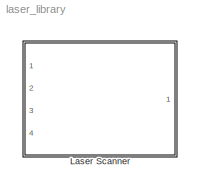
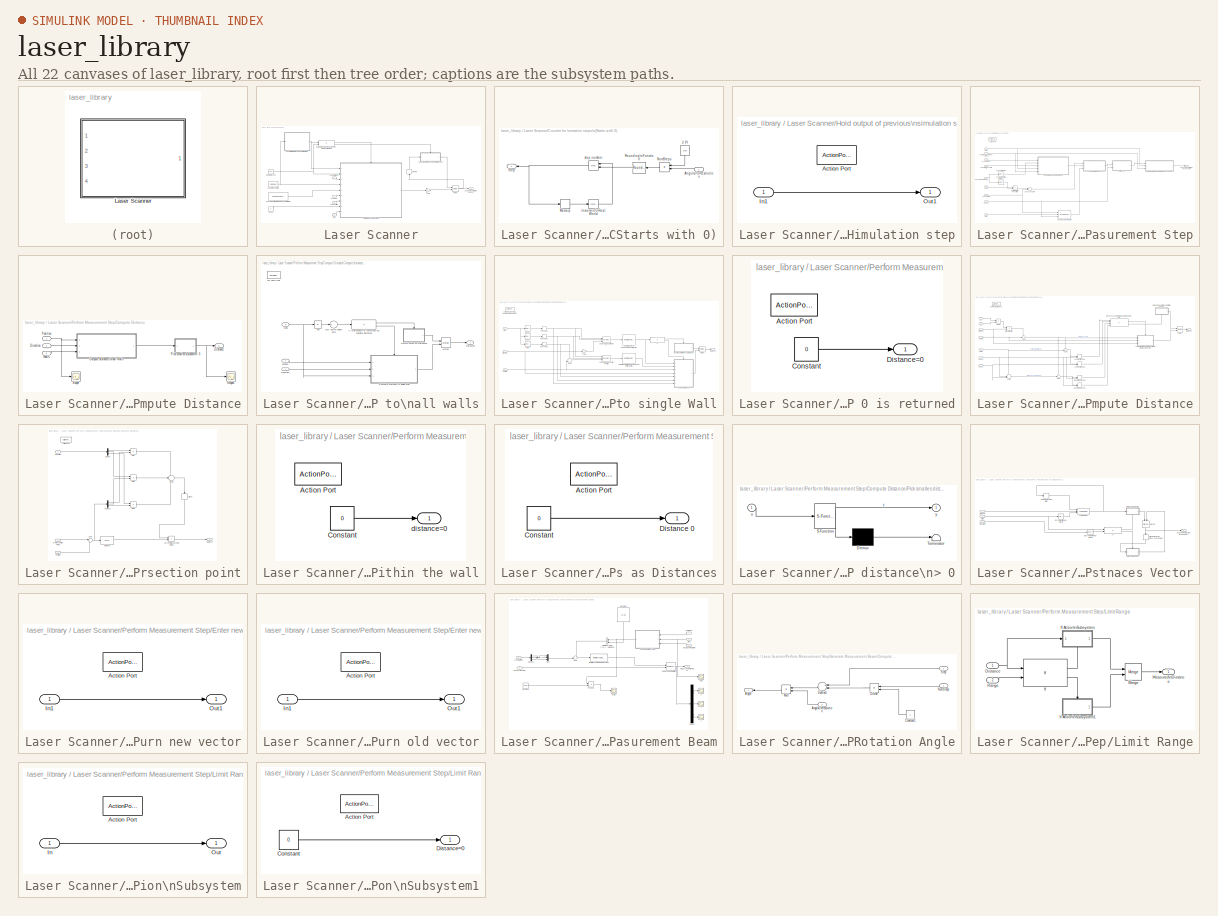
[diagram: thumbnail index - all 22 canvases of the model, root first then tree order]
MODEL laser_library
KIND library
BLOCK [SubSystem] Laser Scanner
  FunctionWithSeparateData = off
  MaskEnableString = on
  MaskHideContents = off
  MaskIconFrame = on
  MaskIconOpaque = on
  MaskIconRotate = none
  MaskIconUnits = autoscale
  MaskPortRotate = default
  MaskPromptString = Scanner Parameters
  MaskStyleString = edit
  MaskToolTipString = on
  MaskTunableValueString = on
  MaskValueString = [0 0 0 1 0 0]
  MaskVariables = scannerParameters=@1;
  MaskVisibilityString = on
  MinAlgLoopOccurrences = off
  Opaque = off
  Ports = [4, 1]
  PropExecContextOutsideSubsystem = off
  RTWSystemCode = Auto
  RequestExecContextInheritance = off
  SID = 1215
BLOCK [Constant] Laser Scanner/Angular Resolution
  OutDataType = fixdt(1, 16)
  OutScaling = 2^0
  SID = 1220
  Value = 0.00628
BLOCK [SubSystem] Laser Scanner/Counter for \nrotation steps\n(Starts with 0)
  FunctionWithSeparateData = off
  MaskHideContents = off
  MinAlgLoopOccurrences = off
  Opaque = off
  Ports = [1, 1]
  PropExecContextOutsideSubsystem = off
  RTWSystemCode = Auto
  RequestExecContextInheritance = off
  SID = 1221
BLOCK [Constant] Laser Scanner/Counter for \nrotation steps\n(Starts with 0)/2 PI
  OutDataType = fixdt(1, 16)
  OutScaling = 2^0
  SID = 1223
  Value = 2*pi
BLOCK [Inport] Laser Scanner/Counter for \nrotation steps\n(Starts with 0)/Angular\nResolution
  IconDisplay = Port number
  OutDataType = fixdt(1, 16)
  OutScaling = 2^0
  SID = 1222
BLOCK [Reference] Laser Scanner/Counter for \nrotation steps\n(Starts with 0)/Increment\nReal World  REF=simulink/Additional Math\n& Discrete/Additional Math:\nIncrement - Decrement/Increment\nReal World
  FunctionWithSeparateData = off
  Ports = [1, 1]
  RTWMemSecDataConstants = Inherit from model
  RTWMemSecDataInternal = Inherit from model
  RTWMemSecDataParameters = Inherit from model
  RTWMemSecFuncExecute = Inherit from model
  RTWMemSecFuncInitTerm = Inherit from model
  SID = 1224
  ShowPortLabels = FromPortIcon
  SourceBlock = simulink/Additional Math\n& Discrete/Additional Math:\nIncrement - Decrement/Increment\nReal World
  SourceType = Real World Value Increment
  SystemSampleTime = -1
BLOCK [Memory] Laser Scanner/Counter for \nrotation steps\n(Starts with 0)/Memory
  InheritSampleTime = on
  SID = 1225
BLOCK [Product] Laser Scanner/Counter for \nrotation steps\n(Starts with 0)/NumSteps
  InputSameDT = off
  Inputs = */
  OutDataType = fixdt(1, 16)
  OutDataTypeMode = Inherit via internal rule
  OutDataTypeStr = Inherit: Inherit via internal rule
  OutScaling = 2^-10
  Ports = [2, 1]
  RndMeth = Floor
  SID = 1226
  SaturateOnIntegerOverflow = off
BLOCK [Rounding] Laser Scanner/Counter for \nrotation steps\n(Starts with 0)/Rounding\nFunction
  SID = 1227
BLOCK [Outport] Laser Scanner/Counter for \nrotation steps\n(Starts with 0)/Step
  IconDisplay = Port number
  SID = 1229
BLOCK [Math] Laser Scanner/Counter for \nrotation steps\n(Starts with 0)/step number
  Operator = mod
  OutDataType = fixdt(1, 16)
  OutScaling = 2^0
  Ports = [2, 1]
  SID = 1228
BLOCK [Gain] Laser Scanner/Gain
  OutDataType = fixdt(1, 16)
  OutDataTypeMode = Inherit via internal rule
  OutDataTypeStr = Inherit: Inherit via internal rule
  OutScaling = 2^0
  ParamDataTypeStr = Inherit: Inherit via internal rule
  ParameterDataType = fixdt(1, 16)
  ParameterDataTypeMode = Inherit via internal rule
  ParameterScaling = 2^0
  SID = 1230
  SaturateOnIntegerOverflow = off
BLOCK [SubSystem] Laser Scanner/Hold output of previous\nsimulation step
  FunctionWithSeparateData = off
  MaskHideContents = off
  MinAlgLoopOccurrences = off
  Opaque = off
  Ports = [1, 1, 0, 0, 0, 0, 0, 1]
  PropExecContextOutsideSubsystem = off
  RTWSystemCode = Auto
  RequestExecContextInheritance = off
  SID = 1231
  TreatAsAtomicUnit = on
BLOCK [ActionPort] Laser Scanner/Hold output of previous\nsimulation step/Action Port
  SID = 1233
BLOCK [Inport] Laser Scanner/Hold output of previous\nsimulation step/In1
  IconDisplay = Port number
  OutDataType = fixdt(1, 16)
  OutScaling = 2^0
  SID = 1232
BLOCK [Outport] Laser Scanner/Hold output of previous\nsimulation step/Out1
  IconDisplay = Port number
  InitialOutput = 0
  OutDataType = fixdt(1, 16)
  OutScaling = 2^0
  SID = 1234
BLOCK [If] Laser Scanner/If current step is\na measurement step,\npermorme it.
  IfExpression = u1 < u2
  NumInputs = 2
  Ports = [2, 2]
  SID = 1235
BLOCK [Memory] Laser Scanner/Memory
  SID = 1236
BLOCK [Merge] Laser Scanner/Merge
  InitialOutput = 0
  Ports = [2, 1]
  SID = 1237
BLOCK [Constant] Laser Scanner/NumDistances
  OutDataType = fixdt(1, 16)
  OutScaling = 2^0
  SID = 1238
  Value = 683
BLOCK [SubSystem] Laser Scanner/Perform Measurement Step
  FunctionWithSeparateData = off
  MaskHideContents = off
  MinAlgLoopOccurrences = off
  Opaque = off
  Ports = [9, 1, 0, 0, 0, 0, 0, 1]
  PropExecContextOutsideSubsystem = off
  RTWSystemCode = Auto
  RequestExecContextInheritance = off
  SID = 1239
BLOCK [ActionPort] Laser Scanner/Perform Measurement Step/Action Port
  SID = 1249
BLOCK [Sum] Laser Scanner/Perform Measurement Step/Add UAV Position
  InputSameDT = off
  OutDataType = fixdt(1, 16)
  OutDataTypeMode = Inherit via internal rule
  OutDataTypeStr = Inherit: Inherit via internal rule
  OutScaling = 2^-10
  Ports = [2, 1]
  SID = 1250
  SaturateOnIntegerOverflow = off
BLOCK [Inport] Laser Scanner/Perform Measurement Step/Angular\nResolution
  IconDisplay = Port number
  Port = 4
  SID = 1243
BLOCK [SubSystem] Laser Scanner/Perform Measurement Step/Compute Distance
  FunctionWithSeparateData = off
  MaskHideContents = off
  MinAlgLoopOccurrences = off
  Opaque = off
  Ports = [3, 1]
  PropExecContextOutsideSubsystem = off
  RTWSystemCode = Auto
  RequestExecContextInheritance = off
  SID = 1251
BLOCK [SubSystem] Laser Scanner/Perform Measurement Step/Compute Distance/Compute distances to\nall walls
  FunctionWithSeparateData = off
  MaskHideContents = off
  MinAlgLoopOccurrences = off
  Opaque = off
  Ports = [3, 1]
  PropExecContextOutsideSubsystem = off
  RTWSystemCode = Auto
  RequestExecContextInheritance = off
  SID = 1255
  TreatAsAtomicUnit = on
BLOCK [Abs] Laser Scanner/Perform Measurement Step/Compute Distance/Compute distances to\nall walls/Abs
  OutDataType = fixdt(1, 16)
  OutScaling = 2^0
  SID = 1259
  SaturateOnIntegerOverflow = off
BLOCK [SubSystem] Laser Scanner/Perform Measurement Step/Compute Distance/Compute distances to\nall walls/Compute Distance to single Wall
  FunctionWithSeparateData = off
  MaskHideContents = off
  MinAlgLoopOccurrences = off
  Opaque = off
  Ports = [3, 1, 0, 0, 0, 0, 0, 1]
  PropExecContextOutsideSubsystem = off
  RTWSystemCode = Auto
  RequestExecContextInheritance = off
  SID = 1260
BLOCK [SubSystem] Laser Scanner/Perform Measurement Step/Compute Distance/Compute distances to\nall walls/Compute Distance to single Wall/Beam is parallel,\nthus 0 is returned
  FunctionWithSeparateData = off
  MaskHideContents = off
  MinAlgLoopOccurrences = off
  Opaque = off
  Ports = [0, 1, 0, 0, 0, 0, 0, 1]
  PropExecContextOutsideSubsystem = off
  RTWSystemCode = Auto
  RequestExecContextInheritance = off
  SID = 1265
  TreatAsAtomicUnit = on
BLOCK [ActionPort] Laser Scanner/Perform Measurement Step/Compute Distance/Compute distances to\nall walls/Compute Distance to single Wall/Beam is parallel,\nthus 0 is returned/Action Port
  SID = 1266
BLOCK [Constant] Laser Scanner/Perform Measurement Step/Compute Distance/Compute distances to\nall walls/Compute Distance to single Wall/Beam is parallel,\nthus 0 is returned/Constant
  OutDataType = fixdt(1, 16)
  OutScaling = 2^0
  SID = 1267
  Value = 0
BLOCK [Outport] Laser Scanner/Perform Measurement Step/Compute Distance/Compute distances to\nall walls/Compute Distance to single Wall/Beam is parallel,\nthus 0 is returned/Distance=0
  IconDisplay = Port number
  InitialOutput = 0
  OutDataType = fixdt(1, 16)
  OutScaling = 2^0
  SID = 1268
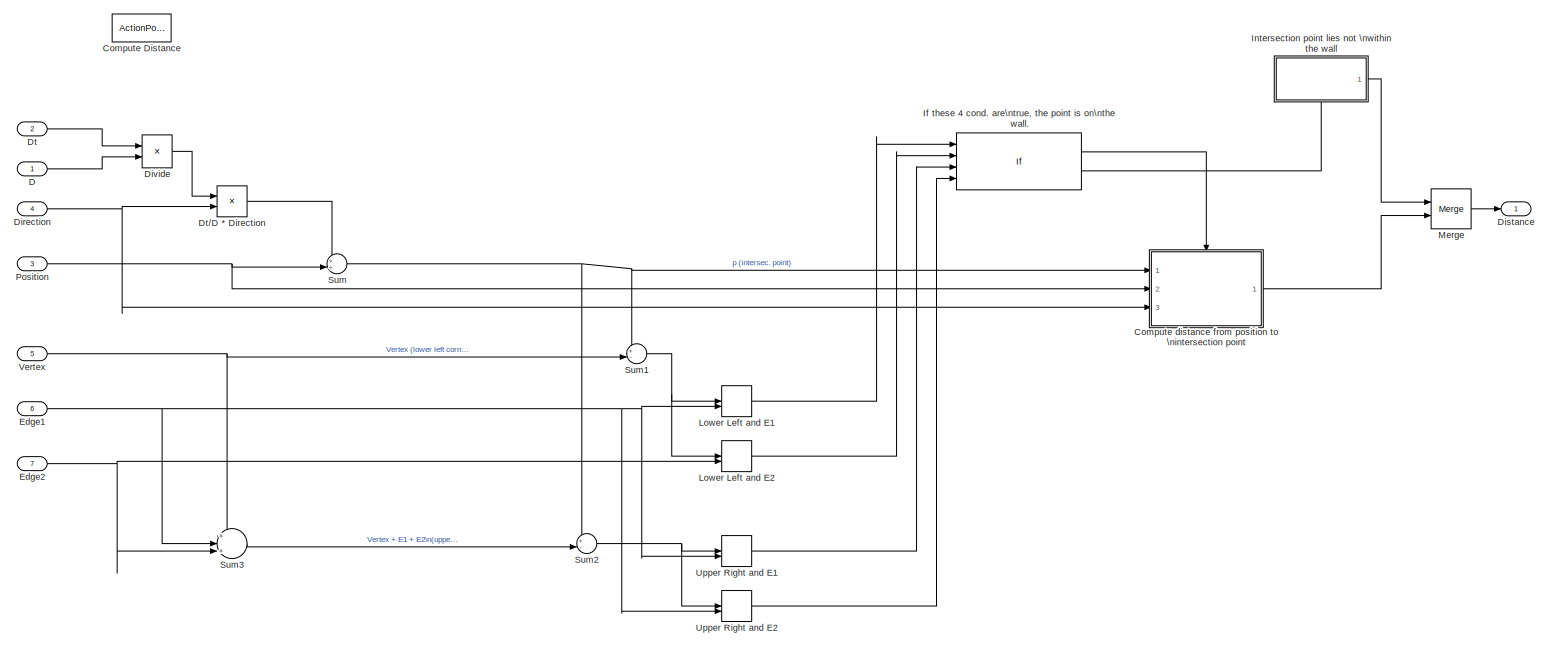
[diagram: Laser Scanner/Perform Measurement Step/Compute Distance/Compute distances to\nall walls/Compute Distance to single Wall/Compute Distance - part 1/1, most of the canvas]
BLOCK [SubSystem] Laser Scanner/Perform Measurement Step/Compute Distance/Compute distances to\nall walls/Compute Distance to single Wall/Compute Distance
  FunctionWithSeparateData = off
  MaskHideContents = off
  MinAlgLoopOccurrences = off
  Opaque = off
  Ports = [7, 1, 0, 0, 0, 0, 0, 1]
  PropExecContextOutsideSubsystem = off
  RTWSystemCode = Auto
  RequestExecContextInheritance = off
  SID = 1269
  TreatAsAtomicUnit = on
BLOCK [ActionPort] Laser Scanner/Perform Measurement Step/Compute Distance/Compute distances to\nall walls/Compute Distance to single Wall/Compute Distance/Compute Distance
  SID = 1277
BLOCK [SubSystem] Laser Scanner/Perform Measurement Step/Compute Distance/Compute distances to\nall walls/Compute Distance to single Wall/Compute Distance/Compute distance from position to \nintersection point
  FunctionWithSeparateData = off
  MaskHideContents = off
  MinAlgLoopOccurrences = off
  Opaque = off
  Ports = [3, 1, 0, 0, 0, 0, 0, 1]
  PropExecContextOutsideSubsystem = off
  RTWSystemCode = Auto
  RequestExecContextInheritance = off
  SID = 1279
  TreatAsAtomicUnit = on
BLOCK [ActionPort] Laser Scanner/Perform Measurement Step/Compute Distance/Compute distances to\nall walls/Compute Distance to single Wall/Compute Distance/Compute distance from position to \nintersection point/Action Port
  SID = 1282
BLOCK [Demux] Laser Scanner/Perform Measurement Step/Compute Distance/Compute distances to\nall walls/Compute Distance to single Wall/Compute Distance/Compute distance from position to \nintersection point/Demux
  DisplayOption = bar
  Outputs = 3
  Ports = [1, 3]
  SID = 1424
BLOCK [Demux] Laser Scanner/Perform Measurement Step/Compute Distance/Compute distances to\nall walls/Compute Distance to single Wall/Compute Distance/Compute distance from position to \nintersection point/Demux1
  DisplayOption = bar
  Outputs = 3
  Ports = [1, 3]
  SID = 1425
BLOCK [Inport] Laser Scanner/Perform Measurement Step/Compute Distance/Compute distances to\nall walls/Compute Distance to single Wall/Compute Distance/Compute distance from position to \nintersection point/Direction
  IconDisplay = Port number
  OutDataType = fixdt(1, 16)
  OutScaling = 2^0
  Port = 3
  SID = 1408
BLOCK [Reference] Laser Scanner/Perform Measurement Step/Compute Distance/Compute distances to\nall walls/Compute Distance to single Wall/Compute Distance/Compute distance from position to \nintersection point/Distance  REF=falter_library/norm
  FunctionWithSeparateData = off
  Ports = [1, 1]
  RTWMemSecDataConstants = Inherit from model
  RTWMemSecDataInternal = Inherit from model
  RTWMemSecDataParameters = Inherit from model
  RTWMemSecFuncExecute = Inherit from model
  RTWMemSecFuncInitTerm = Inherit from model
  SID = 1283
  ShowPortLabels = FromPortIcon
  SourceBlock = falter_library/norm
  SourceType = SubSystem
  SystemSampleTime = -1
BLOCK [Inport] Laser Scanner/Perform Measurement Step/Compute Distance/Compute distances to\nall walls/Compute Distance to single Wall/Compute Distance/Compute distance from position to \nintersection point/Position
  IconDisplay = Port number
  OutDataType = fixdt(1, 16)
  OutScaling = 2^0
  Port = 2
  SID = 1281
BLOCK [Signum] Laser Scanner/Perform Measurement Step/Compute Distance/Compute distances to\nall walls/Compute Distance to single Wall/Compute Distance/Compute distance from position to \nintersection point/Sign3
  SID = 1423
BLOCK [Sum] Laser Scanner/Perform Measurement Step/Compute Distance/Compute distances to\nall walls/Compute Distance to single Wall/Compute Distance/Compute distance from position to \nintersection point/Sum
  IconShape = round
  InputSameDT = off
  Inputs = |+-
  OutDataType = fixdt(1, 16)
  OutDataTypeMode = Inherit via internal rule
  OutDataTypeStr = Inherit: Inherit via internal rule
  OutScaling = 2^0
  Ports = [2, 1]
  SID = 1284
  SaturateOnIntegerOverflow = off
BLOCK [Sum] Laser Scanner/Perform Measurement Step/Compute Distance/Compute distances to\nall walls/Compute Distance to single Wall/Compute Distance/Compute distance from position to \nintersection point/Sum4
  IconShape = round
  InputSameDT = off
  Inputs = +|+|+
  OutDataType = fixdt(1, 16)
  OutDataTypeMode = Inherit via internal rule
  OutDataTypeStr = Inherit: Inherit via internal rule
  OutScaling = 2^0
  Ports = [3, 1]
  SID = 1422
  SaturateOnIntegerOverflow = off
BLOCK [Product] Laser Scanner/Perform Measurement Step/Compute Distance/Compute distances to\nall walls/Compute Distance to single Wall/Compute Distance/Compute distance from position to \nintersection point/correct measurement sign
  InputSameDT = off
  OutDataType = fixdt(1, 16)
  OutDataTypeMode = Inherit via internal rule
  OutDataTypeStr = Inherit: Inherit via internal rule
  OutScaling = 2^0
  Ports = [2, 1]
  SID = 1412
  SaturateOnIntegerOverflow = off
BLOCK [Outport] Laser Scanner/Perform Measurement Step/Compute Distance/Compute distances to\nall walls/Compute Distance to single Wall/Compute Distance/Compute distance from position to \nintersection point/distance
  IconDisplay = Port number
  InitialOutput = 0
  OutDataType = fixdt(1, 16)
  OutScaling = 2^0
  SID = 1285
BLOCK [Product] Laser Scanner/Perform Measurement Step/Compute Distance/Compute distances to\nall walls/Compute Distance to single Wall/Compute Distance/Compute distance from position to \nintersection point/mult
  InputSameDT = off
  OutDataType = fixdt(1, 16)
  OutDataTypeMode = Inherit via internal rule
  OutDataTypeStr = Inherit: Inherit via internal rule
  OutScaling = 2^0
  Ports = [2, 1]
  SID = 1410
  SaturateOnIntegerOverflow = off
BLOCK [Product] Laser Scanner/Perform Measurement Step/Compute Distance/Compute distances to\nall walls/Compute Distance to single Wall/Compute Distance/Compute distance from position to \nintersection point/mult1
  InputSameDT = off
  OutDataType = fixdt(1, 16)
  OutDataTypeMode = Inherit via internal rule
  OutDataTypeStr = Inherit: Inherit via internal rule
  OutScaling = 2^0
  Ports = [2, 1]
  SID = 1416
  SaturateOnIntegerOverflow = off
BLOCK [Product] Laser Scanner/Perform Measurement Step/Compute Distance/Compute distances to\nall walls/Compute Distance to single Wall/Compute Distance/Compute distance from position to \nintersection point/mult2
  InputSameDT = off
  OutDataType = fixdt(1, 16)
  OutDataTypeMode = Inherit via internal rule
  OutDataTypeStr = Inherit: Inherit via internal rule
  OutScaling = 2^0
  Ports = [2, 1]
  SID = 1420
  SaturateOnIntegerOverflow = off
BLOCK [Inport] Laser Scanner/Perform Measurement Step/Compute Distance/Compute distances to\nall walls/Compute Distance to single Wall/Compute Distance/Compute distance from position to \nintersection point/p (Intersection Point)
  IconDisplay = Port number
  OutDataType = fixdt(1, 16)
  OutScaling = 2^0
  SID = 1280
BLOCK [Inport] Laser Scanner/Perform Measurement Step/Compute Distance/Compute distances to\nall walls/Compute Distance to single Wall/Compute Distance/D
  IconDisplay = Port number
  OutDataType = fixdt(1, 16)
  OutScaling = 2^0
  SID = 1270
BLOCK [Inport] Laser Scanner/Perform Measurement Step/Compute Distance/Compute distances to\nall walls/Compute Distance to single Wall/Compute Distance/Direction
  IconDisplay = Port number
  OutDataType = fixdt(1, 16)
  OutScaling = 2^0
  Port = 4
  SID = 1273
BLOCK [Outport] Laser Scanner/Perform Measurement Step/Compute Distance/Compute distances to\nall walls/Compute Distance to single Wall/Compute Distance/Distance
  IconDisplay = Port number
  InitialOutput = 0
  OutDataType = fixdt(1, 16)
  OutScaling = 2^0
  SID = 1305
BLOCK [Product] Laser Scanner/Perform Measurement Step/Compute Distance/Compute distances to\nall walls/Compute Distance to single Wall/Compute Distance/Divide
  InputSameDT = off
  Inputs = */
  OutDataType = fixdt(1, 16)
  OutDataTypeMode = Inherit via internal rule
  OutDataTypeStr = Inherit: Inherit via internal rule
  OutScaling = 2^-10
  Ports = [2, 1]
  RndMeth = Floor
  SID = 1286
  SaturateOnIntegerOverflow = off
BLOCK [Inport] Laser Scanner/Perform Measurement Step/Compute Distance/Compute distances to\nall walls/Compute Distance to single Wall/Compute Distance/Dt
  IconDisplay = Port number
  OutDataType = fixdt(1, 16)
  OutScaling = 2^0
  Port = 2
  SID = 1271
BLOCK [Product] Laser Scanner/Perform Measurement Step/Compute Distance/Compute distances to\nall walls/Compute Distance to single Wall/Compute Distance/Dt//D * Direction
  InputSameDT = off
  OutDataType = fixdt(1, 16)
  OutDataTypeMode = Inherit via internal rule
  OutDataTypeStr = Inherit: Inherit via internal rule
  OutScaling = 2^0
  Ports = [2, 1]
  SID = 1287
  SaturateOnIntegerOverflow = off
BLOCK [Inport] Laser Scanner/Perform Measurement Step/Compute Distance/Compute distances to\nall walls/Compute Distance to single Wall/Compute Distance/Edge1
  IconDisplay = Port number
  OutDataType = fixdt(1, 16)
  OutScaling = 2^0
  Port = 6
  SID = 1275
BLOCK [Inport] Laser Scanner/Perform Measurement Step/Compute Distance/Compute distances to\nall walls/Compute Distance to single Wall/Compute Distance/Edge2
  IconDisplay = Port number
  OutDataType = fixdt(1, 16)
  OutScaling = 2^0
  Port = 7
  SID = 1276
BLOCK [If] Laser Scanner/Perform Measurement Step/Compute Distance/Compute distances to\nall walls/Compute Distance to single Wall/Compute Distance/If these 4 cond. are\ntrue, the point is on\nthe wall.
  IfExpression = (u1 > 0) & (u2 > 0) & (u3<0) & (u4<0)
  NumInputs = 4
  Ports = [4, 2]
  SID = 1289
BLOCK [SubSystem] Laser Scanner/Perform Measurement Step/Compute Distance/Compute distances to\nall walls/Compute Distance to single Wall/Compute Distance/Intersection point lies not \nwithin the wall
  FunctionWithSeparateData = off
  MaskHideContents = off
  MinAlgLoopOccurrences = off
  Opaque = off
  Ports = [0, 1, 0, 0, 0, 0, 0, 1]
  PropExecContextOutsideSubsystem = off
  RTWSystemCode = Auto
  RequestExecContextInheritance = off
  SID = 1290
  TreatAsAtomicUnit = on
BLOCK [ActionPort] Laser Scanner/Perform Measurement Step/Compute Distance/Compute distances to\nall walls/Compute Distance to single Wall/Compute Distance/Intersection point lies not \nwithin the wall/Action Port
  SID = 1291
BLOCK [Constant] Laser Scanner/Perform Measurement Step/Compute Distance/Compute distances to\nall walls/Compute Distance to single Wall/Compute Distance/Intersection point lies not \nwithin the wall/Constant
  OutDataType = fixdt(1, 16)
  OutScaling = 2^0
  SID = 1292
  Value = 0
BLOCK [Outport] Laser Scanner/Perform Measurement Step/Compute Distance/Compute distances to\nall walls/Compute Distance to single Wall/Compute Distance/Intersection point lies not \nwithin the wall/distance=0
  IconDisplay = Port number
  InitialOutput = 0
  OutDataType = fixdt(1, 16)
  OutScaling = 2^0
  SID = 1293
BLOCK [DotProduct] Laser Scanner/Perform Measurement Step/Compute Distance/Compute distances to\nall walls/Compute Distance to single Wall/Compute Distance/Lower Left and E1
  OutDataType = fixdt(1, 16)
  OutDataTypeStr = Inherit: Inherit via internal rule
  OutScaling = 2^-10
  OutputDataTypeScalingMode = Inherit via internal rule
  SID = 1294
BLOCK [DotProduct] Laser Scanner/Perform Measurement Step/Compute Distance/Compute distances to\nall walls/Compute Distance to single Wall/Compute Distance/Lower Left and E2
  OutDataType = fixdt(1, 16)
  OutDataTypeStr = Inherit: Inherit via internal rule
  OutScaling = 2^-10
  OutputDataTypeScalingMode = Inherit via internal rule
  SID = 1295
BLOCK [Merge] Laser Scanner/Perform Measurement Step/Compute Distance/Compute distances to\nall walls/Compute Distance to single Wall/Compute Distance/Merge
  InitialOutput = 0
  Ports = [2, 1]
  SID = 1296
BLOCK [Inport] Laser Scanner/Perform Measurement Step/Compute Distance/Compute distances to\nall walls/Compute Distance to single Wall/Compute Distance/Position
  IconDisplay = Port number
  OutDataType = fixdt(1, 16)
  OutScaling = 2^0
  Port = 3
  SID = 1272
BLOCK [Sum] Laser Scanner/Perform Measurement Step/Compute Distance/Compute distances to\nall walls/Compute Distance to single Wall/Compute Distance/Sum
  IconShape = round
  InputSameDT = off
  Inputs = ++|
  OutDataType = fixdt(1, 16)
  OutDataTypeMode = Inherit via internal rule
  OutDataTypeStr = Inherit: Inherit via internal rule
  OutScaling = 2^0
  Ports = [2, 1]
  SID = 1299
  SaturateOnIntegerOverflow = off
BLOCK [Sum] Laser Scanner/Perform Measurement Step/Compute Distance/Compute distances to\nall walls/Compute Distance to single Wall/Compute Distance/Sum1
  IconShape = round
  InputSameDT = off
  Inputs = +-|
  OutDataType = fixdt(1, 16)
  OutDataTypeMode = Inherit via internal rule
  OutDataTypeStr = Inherit: Inherit via internal rule
  OutScaling = 2^0
  Ports = [2, 1]
  SID = 1300
  SaturateOnIntegerOverflow = off
BLOCK [Sum] Laser Scanner/Perform Measurement Step/Compute Distance/Compute distances to\nall walls/Compute Distance to single Wall/Compute Distance/Sum2
  IconShape = round
  InputSameDT = off
  Inputs = +-|
  OutDataType = fixdt(1, 16)
  OutDataTypeMode = Inherit via internal rule
  OutDataTypeStr = Inherit: Inherit via internal rule
  OutScaling = 2^0
  Ports = [2, 1]
  SID = 1301
  SaturateOnIntegerOverflow = off
BLOCK [Sum] Laser Scanner/Perform Measurement Step/Compute Distance/Compute distances to\nall walls/Compute Distance to single Wall/Compute Distance/Sum3
  IconShape = round
  InputSameDT = off
  Inputs = +|+|+
  OutDataType = fixdt(1, 16)
  OutDataTypeMode = Inherit via internal rule
  OutDataTypeStr = Inherit: Inherit via internal rule
  OutScaling = 2^0
  Ports = [3, 1]
  SID = 1302
  SaturateOnIntegerOverflow = off
BLOCK [DotProduct] Laser Scanner/Perform Measurement Step/Compute Distance/Compute distances to\nall walls/Compute Distance to single Wall/Compute Distance/Upper Right and E1
  OutDataType = fixdt(1, 16)
  OutDataTypeStr = Inherit: Inherit via internal rule
  OutScaling = 2^-10
  OutputDataTypeScalingMode = Inherit via internal rule
  SID = 1303
BLOCK [DotProduct] Laser Scanner/Perform Measurement Step/Compute Distance/Compute distances to\nall walls/Compute Distance to single Wall/Compute Distance/Upper Right and E2
  OutDataType = fixdt(1, 16)
  OutDataTypeStr = Inherit: Inherit via internal rule
  OutScaling = 2^-10
  OutputDataTypeScalingMode = Inherit via internal rule
  SID = 1304
BLOCK [Inport] Laser Scanner/Perform Measurement Step/Compute Distance/Compute distances to\nall walls/Compute Distance to single Wall/Compute Distance/Vertex
  IconDisplay = Port number
  OutDataType = fixdt(1, 16)
  OutScaling = 2^0
  Port = 5
  SID = 1274
BLOCK [Reference] Laser Scanner/Perform Measurement Step/Compute Distance/Compute distances to\nall walls/Compute Distance to single Wall/Determinant D of \nEdge1|Edge2|-Direction  REF=aerolibutil/Determinant of\n3x3 Matrix
  FunctionWithSeparateData = off
  Ports = [1, 1]
  RTWMemSecDataConstants = Inherit from model
  RTWMemSecDataInternal = Inherit from model
  RTWMemSecDataParameters = Inherit from model
  RTWMemSecFuncExecute = Inherit from model
  RTWMemSecFuncInitTerm = Inherit from model
  SID = 1306
  ShowPortLabels = FromPortIcon
  SourceBlock = aerolibutil/Determinant of\n3x3 Matrix
  SourceType = Determinant of 3x3 Matrix
  SystemSampleTime = -1
BLOCK [Reference] Laser Scanner/Perform Measurement Step/Compute Distance/Compute distances to\nall walls/Compute Distance to single Wall/Determinant Dt of\nEdge1|Edge2|Position-Vertex  REF=aerolibutil/Determinant of\n3x3 Matrix
  FunctionWithSeparateData = off
  Ports = [1, 1]
  RTWMemSecDataConstants = Inherit from model
  RTWMemSecDataInternal = Inherit from model
  RTWMemSecDataParameters = Inherit from model
  RTWMemSecFuncExecute = Inherit from model
  RTWMemSecFuncInitTerm = Inherit from model
  SID = 1307
  ShowPortLabels = FromPortIcon
  SourceBlock = aerolibutil/Determinant of\n3x3 Matrix
  SourceType = Determinant of 3x3 Matrix
  SystemSampleTime = -1
BLOCK [Inport] Laser Scanner/Perform Measurement Step/Compute Distance/Compute distances to\nall walls/Compute Distance to single Wall/Direction
  IconDisplay = Port number
  OutDataType = fixdt(1, 16)
  OutScaling = 2^0
  Port = 2
  SID = 1262
BLOCK [Outport] Laser Scanner/Perform Measurement Step/Compute Distance/Compute distances to\nall walls/Compute Distance to single Wall/Distance
  IconDisplay = Port number
  InitialOutput = 0
  OutDataType = fixdt(1, 16)
  OutScaling = 2^0
  SID = 1320
BLOCK [Selector] Laser Scanner/Perform Measurement Step/Compute Distance/Compute distances to\nall walls/Compute Distance to single Wall/Edge 1
  IndexOptions = Select all,Index vector (dialog)
  Indices = [1 2 3],[4 5 6]
  InputPortWidth = 3
  NumberOfDimensions = 2
  OutputSizes = 1,1
  Ports = [1, 1]
  SID = 1308
BLOCK [Selector] Laser Scanner/Perform Measurement Step/Compute Distance/Compute distances to\nall walls/Compute Distance to single Wall/Edge 2
  IndexOptions = Select all,Index vector (dialog)
  Indices = [1 2 3],[7 8 9]
  InputPortWidth = 3
  NumberOfDimensions = 2
  OutputSizes = 1,1
  Ports = [1, 1]
  SID = 1309
BLOCK [Concatenate] Laser Scanner/Perform Measurement Step/Compute Distance/Compute distances to\nall walls/Compute Distance to single Wall/Edge1|Edge2|Direction
  ConcatenateDimension = 2
  Mode = Multidimensional array
  NumInputs = 3
  Ports = [3, 1]
  SID = 1310
BLOCK [Concatenate] Laser Scanner/Perform Measurement Step/Compute Distance/Compute distances to\nall walls/Compute Distance to single Wall/Edge1|Edge2|Position-Vertex
  ConcatenateDimension = 2
  Mode = Multidimensional array
  NumInputs = 3
  Ports = [3, 1]
  SID = 1311
BLOCK [ActionPort] Laser Scanner/Perform Measurement Step/Compute Distance/Compute distances to\nall walls/Compute Distance to single Wall/For intersection of wall and \nmeasurment beam, the sys. of lin. equ.\nVertex + r*Edge1 + f*Edge2 = Position + t*Direction\nneeds to be solved.
  SID = 1264
BLOCK [Gain] Laser Scanner/Perform Measurement Step/Compute Distance/Compute distances to\nall walls/Compute Distance to single Wall/Gain
  Gain = -1
  OutDataType = fixdt(1, 16)
  OutDataTypeMode = Inherit via internal rule
  OutDataTypeStr = Inherit: Inherit via internal rule
  OutScaling = 2^0
  ParamDataTypeStr = Inherit: Inherit via internal rule
  ParameterDataType = fixdt(1, 16)
  ParameterDataTypeMode = Inherit via internal rule
  ParameterScaling = 2^0
  SID = 1312
  SaturateOnIntegerOverflow = off
BLOCK [If] Laser Scanner/Perform Measurement Step/Compute Distance/Compute distances to\nall walls/Compute Distance to single Wall/If
  IfExpression = u1 == 0
  Ports = [1, 2]
  SID = 1313
BLOCK [Merge] Laser Scanner/Perform Measurement Step/Compute Distance/Compute distances to\nall walls/Compute Distance to single Wall/Merge
  InitialOutput = 0
  Ports = [2, 1]
  SID = 1314
BLOCK [Inport] Laser Scanner/Perform Measurement Step/Compute Distance/Compute distances to\nall walls/Compute Distance to single Wall/Position
  IconDisplay = Port number
  OutDataType = fixdt(1, 16)
  OutScaling = 2^0
  SID = 1261
BLOCK [Reshape] Laser Scanner/Perform Measurement Step/Compute Distance/Compute distances to\nall walls/Compute Distance to single Wall/Reshape
  OutputDimensionality = Column vector (2-D)
  Ports = [1, 1]
  SID = 1315
BLOCK [Reshape] Laser Scanner/Perform Measurement Step/Compute Distance/Compute distances to\nall walls/Compute Distance to single Wall/Reshape1
  OutputDimensionality = Column vector (2-D)
  Ports = [1, 1]
  SID = 1316
BLOCK [Reshape] Laser Scanner/Perform Measurement Step/Compute Distance/Compute distances to\nall walls/Compute Distance to single Wall/Reshape2
  OutputDimensionality = Column vector (2-D)
  Ports = [1, 1]
  SID = 1317
BLOCK [Sum] Laser Scanner/Perform Measurement Step/Compute Distance/Compute distances to\nall walls/Compute Distance to single Wall/Sum
  IconShape = round
  InputSameDT = off
  Inputs = -||+|
  OutDataType = fixdt(1, 16)
  OutDataTypeMode = Inherit via internal rule
  OutDataTypeStr = Inherit: Inherit via internal rule
  OutScaling = 2^0
  Ports = [2, 1]
  SID = 1318
  SaturateOnIntegerOverflow = off
BLOCK [Selector] Laser Scanner/Perform Measurement Step/Compute Distance/Compute distances to\nall walls/Compute Distance to single Wall/Vertex
  IndexOptions = Select all,Index vector (dialog)
  Indices = [1 2 3],[1 2 3]
  InputPortWidth = 3
  NumberOfDimensions = 2
  OutputSizes = 1,1
  Ports = [1, 1]
  SID = 1319
BLOCK [Inport] Laser Scanner/Perform Measurement Step/Compute Distance/Compute distances to\nall walls/Compute Distance to single Wall/Wall
  IconDisplay = Port number
  OutDataType = fixdt(1, 16)
  OutScaling = 2^0
  Port = 3
  SID = 1263
BLOCK [Inport] Laser Scanner/Perform Measurement Step/Compute Distance/Compute distances to\nall walls/Direction
  IconDisplay = Port number
  OutDataType = fixdt(1, 16)
  OutScaling = 2^0
  Partition = off
  Port = 2
  SID = 1257
BLOCK [Outport] Laser Scanner/Perform Measurement Step/Compute Distance/Compute distances to\nall walls/Distances
  ConcatenationDimension = 1
  IconDisplay = Port number
  OutDataType = fixdt(1, 16)
  OutScaling = 2^0
  SID = 1329
BLOCK [ForEach] Laser Scanner/Perform Measurement Step/Compute Distance/Compute distances to\nall walls/For Each Wall
  DisableCoverage = on
  IndexMode = One-based
  Ports = []
  SID = 1321
  StateHandling = Separate states for each iteration
BLOCK [If] Laser Scanner/Perform Measurement Step/Compute Distance/Compute distances to\nall walls/If wall consists of zeros\ndo not calculate distances
  IfExpression = u1 == 0
  Ports = [1, 2]
  SID = 1322
BLOCK [Merge] Laser Scanner/Perform Measurement Step/Compute Distance/Compute distances to\nall walls/Merge
  InitialOutput = 0
  Ports = [2, 1]
  SID = 1323
BLOCK [Inport] Laser Scanner/Perform Measurement Step/Compute Distance/Compute distances to\nall walls/Position
  IconDisplay = Port number
  OutDataType = fixdt(1, 16)
  OutScaling = 2^0
  Partition = off
  SID = 1256
BLOCK [SubSystem] Laser Scanner/Perform Measurement Step/Compute Distance/Compute distances to\nall walls/Return zeros as Distances
  FunctionWithSeparateData = off
  MaskHideContents = off
  MinAlgLoopOccurrences = off
  Opaque = off
  Ports = [0, 1, 0, 0, 0, 0, 0, 1]
  PropExecContextOutsideSubsystem = off
  RTWSystemCode = Auto
  RequestExecContextInheritance = off
  SID = 1324
  TreatAsAtomicUnit = on
BLOCK [ActionPort] Laser Scanner/Perform Measurement Step/Compute Distance/Compute distances to\nall walls/Return zeros as Distances/Action Port
  SID = 1325
BLOCK [Constant] Laser Scanner/Perform Measurement Step/Compute Distance/Compute distances to\nall walls/Return zeros as Distances/Constant
  OutDataType = fixdt(1, 16)
  OutScaling = 2^0
  SID = 1326
  Value = 0
BLOCK [Outport] Laser Scanner/Perform Measurement Step/Compute Distance/Compute distances to\nall walls/Return zeros as Distances/Distance 0
  IconDisplay = Port number
  InitialOutput = 0
  OutDataType = fixdt(1, 16)
  OutScaling = 2^0
  SID = 1327
BLOCK [Sum] Laser Scanner/Perform Measurement Step/Compute Distance/Compute distances to\nall walls/Sum Vector\nElements
  InputSameDT = off
  Inputs = +
  OutDataType = fixdt(1, 16)
  OutDataTypeMode = Inherit via internal rule
  OutDataTypeStr = Inherit: Inherit via internal rule
  OutScaling = 2^-10
  Ports = [1, 1]
  SID = 1328
  SaturateOnIntegerOverflow = off
BLOCK [Inport] Laser Scanner/Perform Measurement Step/Compute Distance/Compute distances to\nall walls/Walls
  IconDisplay = Port number
  OutDataType = fixdt(1, 16)
  OutScaling = 2^0
  Partition = on
  PartitionDimension = 1
  PartitionWidth = 1
  Port = 3
  SID = 1258
BLOCK [Inport] Laser Scanner/Perform Measurement Step/Compute Distance/Direction
  IconDisplay = Port number
  OutDataType = fixdt(1, 16)
  OutScaling = 2^0
  Port = 2
  SID = 1253
BLOCK [Outport] Laser Scanner/Perform Measurement Step/Compute Distance/Distance
  IconDisplay = Port number
  OutDataType = fixdt(1, 16)
  OutScaling = 2^0
  SID = 1333
BLOCK [SubSystem] Laser Scanner/Perform Measurement Step/Compute Distance/Pick smalles distance\n> 0
  FunctionWithSeparateData = off
  MaskDescription = Embedded MATLAB block
  MaskDisplay = disp('fcn');
  MaskHideContents = off
  MaskIconFrame = on
  MaskIconOpaque = off
  MaskIconRotate = none
  MaskIconUnits = autoscale
  MaskPortRotate = default
  MaskSelfModifiable = on
  MaskType = Stateflow
  MinAlgLoopOccurrences = off
  Opaque = off
  PermitHierarchicalResolution = ExplicitOnly
  Ports = [1, 1]
  PropExecContextOutsideSubsystem = off
  RTWSystemCode = Auto
  RequestExecContextInheritance = off
  SID = 1330
  TreatAsAtomicUnit = on
BLOCK [Demux] Laser Scanner/Perform Measurement Step/Compute Distance/Pick smalles distance\n> 0/ Demux 
  Outputs = 1
  Ports = [1, 1]
  SID = 75
BLOCK [S-Function] Laser Scanner/Perform Measurement Step/Compute Distance/Pick smalles distance\n> 0/ SFunction 
  EnableBusSupport = off
  FunctionName = sf_sfun
  PortCounts = [1 2]
  Ports = [1, 2]
  SID = 74
  Tag = Stateflow S-Function laser_library 3
BLOCK [Terminator] Laser Scanner/Perform Measurement Step/Compute Distance/Pick smalles distance\n> 0/ Terminator 
  SID = 77
BLOCK [Inport] Laser Scanner/Perform Measurement Step/Compute Distance/Pick smalles distance\n> 0/u
  IconDisplay = Port number
  OutDataType = sfix(16)
  OutScaling = 2^0
  SID = 1
BLOCK [Outport] Laser Scanner/Perform Measurement Step/Compute Distance/Pick smalles distance\n> 0/y
  IconDisplay = Port number
  OutDataType = sfix(16)
  OutScaling = 2^0
  SID = 5
BLOCK [Inport] Laser Scanner/Perform Measurement Step/Compute Distance/Position
  IconDisplay = Port number
  OutDataType = fixdt(1, 16)
  OutScaling = 2^0
  SID = 1252
BLOCK [Scope] Laser Scanner/Perform Measurement Step/Compute Distance/Scope
  DataFormat = StructureWithTime
  Floating = off
  NumInputPorts = 1
  Ports = [1]
  SID = 1331
  SampleTime = 0
  SaveName = ScopeData4
  YMax = 1
  YMin = 0
BLOCK [Scope] Laser Scanner/Perform Measurement Step/Compute Distance/Scope1
  DataFormat = StructureWithTime
  Floating = off
  NumInputPorts = 1
  Ports = [1]
  SID = 1332
  SampleTime = 0
  SaveName = ScopeData3
  YMax = 130
  YMin = 0
BLOCK [Inport] Laser Scanner/Perform Measurement Step/Compute Distance/Walls
  IconDisplay = Port number
  OutDataType = fixdt(1, 16)
  OutScaling = 2^0
  Port = 3
  SID = 1254
BLOCK [Inport] Laser Scanner/Perform Measurement Step/DCM
  IconDisplay = Port number
  Port = 6
  SID = 1245
BLOCK [SubSystem] Laser Scanner/Perform Measurement Step/Enter new distance to\nDistnaces Vector
  FunctionWithSeparateData = off
  MaskHideContents = off
  MinAlgLoopOccurrences = off
  Opaque = off
  Ports = [3, 1]
  PropExecContextOutsideSubsystem = off
  RTWSystemCode = Auto
  RequestExecContextInheritance = off
  SID = 1334
BLOCK [Assignment] Laser Scanner/Perform Measurement Step/Enter new distance to\nDistnaces Vector/Assignment
  IndexOptions = Index vector (port)
  Indices = 1
  OutputSizes = 1
  Ports = [3, 1]
  SID = 1338
BLOCK [Reference] Laser Scanner/Perform Measurement Step/Enter new distance to\nDistnaces Vector/Decrement\nReal World  REF=simulink/Additional Math\n& Discrete/Additional Math:\nIncrement - Decrement/Decrement\nReal World
  FunctionWithSeparateData = off
  Ports = [1, 1]
  RTWMemSecDataConstants = Inherit from model
  RTWMemSecDataInternal = Inherit from model
  RTWMemSecDataParameters = Inherit from model
  RTWMemSecFuncExecute = Inherit from model
  RTWMemSecFuncInitTerm = Inherit from model
  SID = 1339
  ShowPortLabels = FromPortIcon
  SourceBlock = simulink/Additional Math\n& Discrete/Additional Math:\nIncrement - Decrement/Decrement\nReal World
  SourceType = Real World Value Decrement
  SystemSampleTime = -1
BLOCK [Inport] Laser Scanner/Perform Measurement Step/Enter new distance to\nDistnaces Vector/Distance
  IconDisplay = Port number
  OutDataType = fixdt(1, 16)
  OutScaling = 2^0
  SID = 1335
BLOCK [If] Laser Scanner/Perform Measurement Step/Enter new distance to\nDistnaces Vector/If
  IfExpression = u1 == u2
  NumInputs = 2
  Ports = [2, 2]
  SID = 1340
BLOCK [Reference] Laser Scanner/Perform Measurement Step/Enter new distance to\nDistnaces Vector/Increment\nReal World  REF=simulink/Additional Math\n& Discrete/Additional Math:\nIncrement - Decrement/Increment\nReal World
  FunctionWithSeparateData = off
  Ports = [1, 1]
  RTWMemSecDataConstants = Inherit from model
  RTWMemSecDataInternal = Inherit from model
  RTWMemSecDataParameters = Inherit from model
  RTWMemSecFuncExecute = Inherit from model
  RTWMemSecFuncInitTerm = Inherit from model
  SID = 1341
  ShowPortLabels = FromPortIcon
  SourceBlock = simulink/Additional Math\n& Discrete/Additional Math:\nIncrement - Decrement/Increment\nReal World
  SourceType = Real World Value Increment
  SystemSampleTime = -1
BLOCK [Inport] Laser Scanner/Perform Measurement Step/Enter new distance to\nDistnaces Vector/MaxStep
  IconDisplay = Port number
  OutDataType = fixdt(1, 16)
  OutScaling = 2^0
  Port = 3
  SID = 1337
BLOCK [Merge] Laser Scanner/Perform Measurement Step/Enter new distance to\nDistnaces Vector/Merge
  InitialOutput = 0
  Ports = [2, 1]
  SID = 1342
BLOCK [Memory] Laser Scanner/Perform Measurement Step/Enter new distance to\nDistnaces Vector/New vector to be filled
  InheritSampleTime = on
  SID = 1343
  X0 = [0 0 0 0 0 0 0 0 0 0 0 0 0 0 0 0 0 0 0 0 0 0 0 0 0 0 0 0 0 0 0 0 0 0 0 0 0 0 0 0 0 0 0 0 0 0 0 0 0 0 0 0 0 0 0 0 0 0 0 0 0 0 0 0 0 0 0 0 0 0 0 0 0 0 0 0 0 0 0 0 0 0 0 0 0 0 0 0 0 0 0 0 0 0 0 0 0 0 0 0 0 0 0 0 0 0 0 0 0 0 0 0 0 0 0 0 0 0 0 0 0 0 0 0 0 0 0 0 0 0 0 0 0 0 0 0 0 0 0 0 0 0 0 0 0 0 0 0 0 0 0 0 0 0 0 0 0 0 0 0 0 0 0 0 0 0 0 0 0 0 0 0 0 0 0 0 0 0 0 0 0 0 0 0 0 0 0 0 0 0 0 0 0 0 0 0 0 0 0 0...<+967ch>
BLOCK [Memory] Laser Scanner/Perform Measurement Step/Enter new distance to\nDistnaces Vector/Old Vector, from \nlast complete \nmeasurement
  InheritSampleTime = on
  SID = 1344
  X0 = [0 0 0 0 0 0 0 0 0 0 0 0 0 0 0 0 0 0 0 0 0 0 0 0 0 0 0 0 0 0 0 0 0 0 0 0 0 0 0 0 0 0 0 0 0 0 0 0 0 0 0 0 0 0 0 0 0 0 0 0 0 0 0 0 0 0 0 0 0 0 0 0 0 0 0 0 0 0 0 0 0 0 0 0 0 0 0 0 0 0 0 0 0 0 0 0 0 0 0 0 0 0 0 0 0 0 0 0 0 0 0 0 0 0 0 0 0 0 0 0 0 0 0 0 0 0 0 0 0 0 0 0 0 0 0 0 0 0 0 0 0 0 0 0 0 0 0 0 0 0 0 0 0 0 0 0 0 0 0 0 0 0 0 0 0 0 0 0 0 0 0 0 0 0 0 0 0 0 0 0 0 0 0 0 0 0 0 0 0 0 0 0 0 0 0 0 0 0 0 0...<+967ch>
BLOCK [SubSystem] Laser Scanner/Perform Measurement Step/Enter new distance to\nDistnaces Vector/Return new vector
  FunctionWithSeparateData = off
  MaskHideContents = off
  MinAlgLoopOccurrences = off
  Opaque = off
  Ports = [1, 1, 0, 0, 0, 0, 0, 1]
  PropExecContextOutsideSubsystem = off
  RTWSystemCode = Auto
  RequestExecContextInheritance = off
  SID = 1345
  TreatAsAtomicUnit = on
BLOCK [ActionPort] Laser Scanner/Perform Measurement Step/Enter new distance to\nDistnaces Vector/Return new vector/Action Port
  SID = 1347
BLOCK [Inport] Laser Scanner/Perform Measurement Step/Enter new distance to\nDistnaces Vector/Return new vector/In1
  IconDisplay = Port number
  OutDataType = fixdt(1, 16)
  OutScaling = 2^0
  SID = 1346
BLOCK [Outport] Laser Scanner/Perform Measurement Step/Enter new distance to\nDistnaces Vector/Return new vector/Out1
  IconDisplay = Port number
  InitialOutput = 0
  OutDataType = fixdt(1, 16)
  OutScaling = 2^0
  SID = 1348
BLOCK [SubSystem] Laser Scanner/Perform Measurement Step/Enter new distance to\nDistnaces Vector/Return old vector
  FunctionWithSeparateData = off
  MaskHideContents = off
  MinAlgLoopOccurrences = off
  Opaque = off
  Ports = [1, 1, 0, 0, 0, 0, 0, 1]
  PropExecContextOutsideSubsystem = off
  RTWSystemCode = Auto
  RequestExecContextInheritance = off
  SID = 1349
  TreatAsAtomicUnit = on
BLOCK [ActionPort] Laser Scanner/Perform Measurement Step/Enter new distance to\nDistnaces Vector/Return old vector/Action Port
  SID = 1351
BLOCK [Inport] Laser Scanner/Perform Measurement Step/Enter new distance to\nDistnaces Vector/Return old vector/In1
  IconDisplay = Port number
  OutDataType = fixdt(1, 16)
  OutScaling = 2^0
  SID = 1350
BLOCK [Outport] Laser Scanner/Perform Measurement Step/Enter new distance to\nDistnaces Vector/Return old vector/Out1
  IconDisplay = Port number
  InitialOutput = 0
  OutDataType = fixdt(1, 16)
  OutScaling = 2^0
  SID = 1352
BLOCK [Outport] Laser Scanner/Perform Measurement Step/Enter new distance to\nDistnaces Vector/Scann Result\n(Distance Vector)
  IconDisplay = Port number
  OutDataType = fixdt(1, 16)
  OutScaling = 2^0
  SID = 1353
BLOCK [Inport] Laser Scanner/Perform Measurement Step/Enter new distance to\nDistnaces Vector/Step
  IconDisplay = Port number
  OutDataType = fixdt(1, 16)
  OutScaling = 2^0
  Port = 2
  SID = 1336
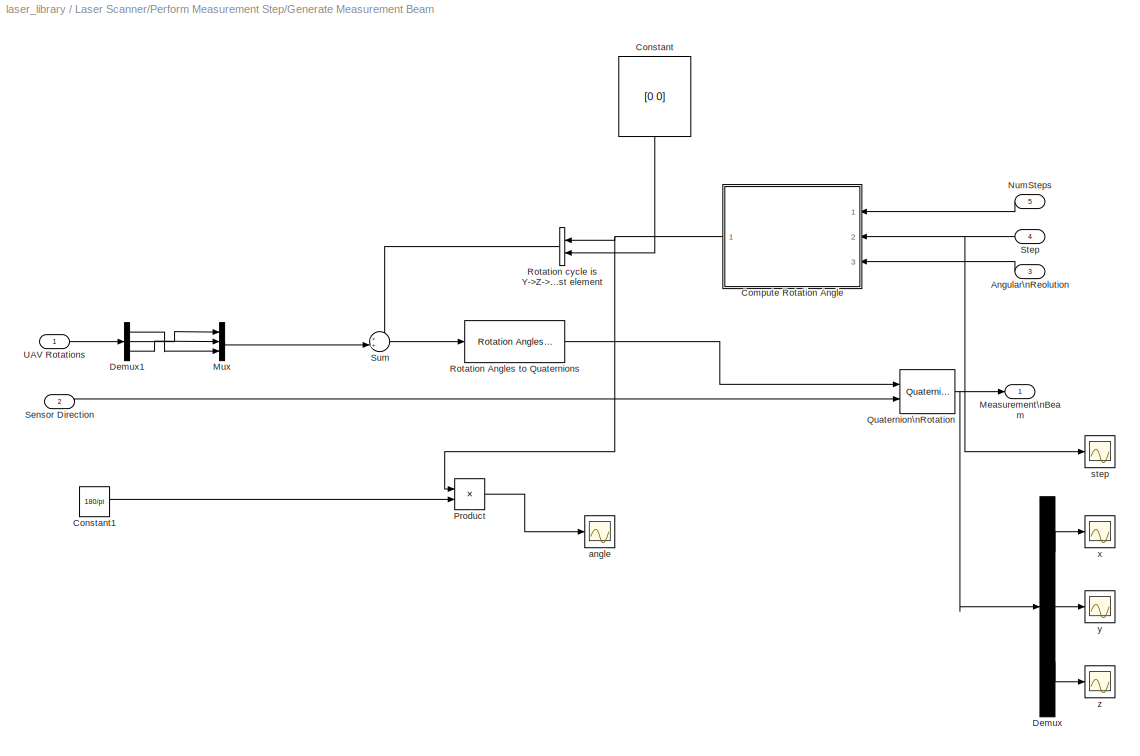
BLOCK [SubSystem] Laser Scanner/Perform Measurement Step/Generate Measurement Beam
  FunctionWithSeparateData = off
  MaskHideContents = off
  MinAlgLoopOccurrences = off
  Opaque = off
  Ports = [5, 1]
  PropExecContextOutsideSubsystem = off
  RTWSystemCode = Auto
  RequestExecContextInheritance = off
  SID = 1354
BLOCK [Inport] Laser Scanner/Perform Measurement Step/Generate Measurement Beam/Angular\nReolution
  IconDisplay = Port number
  Port = 3
  SID = 1357
BLOCK [SubSystem] Laser Scanner/Perform Measurement Step/Generate Measurement Beam/Compute Rotation Angle
  FunctionWithSeparateData = off
  MaskHideContents = off
  MinAlgLoopOccurrences = off
  Opaque = off
  Ports = [3, 1]
  PropExecContextOutsideSubsystem = off
  RTWSystemCode = Auto
  RequestExecContextInheritance = off
  SID = 1360
BLOCK [Outport] Laser Scanner/Perform Measurement Step/Generate Measurement Beam/Compute Rotation Angle/Angle
  IconDisplay = Port number
  OutDataType = fixdt(1, 16)
  OutScaling = 2^0
  SID = 1368
BLOCK [Inport] Laser Scanner/Perform Measurement Step/Generate Measurement Beam/Compute Rotation Angle/Angular\nResolution
  IconDisplay = Port number
  Port = 3
  SID = 1363
BLOCK [Constant] Laser Scanner/Perform Measurement Step/Generate Measurement Beam/Compute Rotation Angle/Constant1
  OutDataType = fixdt(1, 16)
  OutScaling = 2^0
  SID = 1364
  Value = 2
BLOCK [Product] Laser Scanner/Perform Measurement Step/Generate Measurement Beam/Compute Rotation Angle/Divide
  InputSameDT = off
  Inputs = */
  OutDataType = fixdt(1, 16)
  OutDataTypeMode = Inherit via internal rule
  OutDataTypeStr = Inherit: Inherit via internal rule
  OutScaling = 2^-10
  Ports = [2, 1]
  RndMeth = Floor
  SID = 1365
  SaturateOnIntegerOverflow = off
BLOCK [Product] Laser Scanner/Perform Measurement Step/Generate Measurement Beam/Compute Rotation Angle/Mult
  InputSameDT = off
  OutDataType = fixdt(1, 16)
  OutDataTypeMode = Inherit via internal rule
  OutDataTypeStr = Inherit: Inherit via internal rule
  OutScaling = 2^0
  Ports = [2, 1]
  SID = 1366
  SaturateOnIntegerOverflow = off
BLOCK [Inport] Laser Scanner/Perform Measurement Step/Generate Measurement Beam/Compute Rotation Angle/NumSteps
  IconDisplay = Port number
  SID = 1361
BLOCK [Inport] Laser Scanner/Perform Measurement Step/Generate Measurement Beam/Compute Rotation Angle/Step
  IconDisplay = Port number
  Port = 2
  SID = 1362
BLOCK [Sum] Laser Scanner/Perform Measurement Step/Generate Measurement Beam/Compute Rotation Angle/Subtract
  InputSameDT = off
  Inputs = +-
  OutDataType = fixdt(1, 16)
  OutDataTypeMode = Inherit via internal rule
  OutDataTypeStr = Inherit: Inherit via internal rule
  OutScaling = 2^-10
  Ports = [2, 1]
  SID = 1367
  SaturateOnIntegerOverflow = off
BLOCK [Constant] Laser Scanner/Perform Measurement Step/Generate Measurement Beam/Constant
  OutDataType = fixdt(1, 16)
  OutScaling = 2^0
  SID = 1369
  Value = [0 0]
BLOCK [Constant] Laser Scanner/Perform Measurement Step/Generate Measurement Beam/Constant1
  OutDataType = fixdt(1, 16)
  OutScaling = 2^0
  SID = 1370
  Value = 180/pi
BLOCK [Demux] Laser Scanner/Perform Measurement Step/Generate Measurement Beam/Demux
  DisplayOption = bar
  Outputs = 3
  Ports = [1, 3]
  SID = 1371
BLOCK [Demux] Laser Scanner/Perform Measurement Step/Generate Measurement Beam/Demux1
  DisplayOption = bar
  Outputs = 3
  Ports = [1, 3]
  SID = 1372
BLOCK [Outport] Laser Scanner/Perform Measurement Step/Generate Measurement Beam/Measurement\nBeam
  IconDisplay = Port number
  SID = 1384
BLOCK [Mux] Laser Scanner/Perform Measurement Step/Generate Measurement Beam/Mux
  DisplayOption = bar
  Inputs = 3
  Ports = [3, 1]
  SID = 1373
BLOCK [Inport] Laser Scanner/Perform Measurement Step/Generate Measurement Beam/NumSteps
  IconDisplay = Port number
  Port = 5
  SID = 1359
BLOCK [Product] Laser Scanner/Perform Measurement Step/Generate Measurement Beam/Product
  InputSameDT = off
  OutDataType = fixdt(1, 16)
  OutDataTypeMode = Inherit via internal rule
  OutDataTypeStr = Inherit: Inherit via internal rule
  OutScaling = 2^0
  Ports = [2, 1]
  SID = 1374
  SaturateOnIntegerOverflow = off
BLOCK [Reference] Laser Scanner/Perform Measurement Step/Generate Measurement Beam/Quaternion\nRotation  REF=aerolibutil/Quaternion\nRotation
  FunctionWithSeparateData = off
  Ports = [2, 1]
  RTWMemSecDataConstants = Inherit from model
  RTWMemSecDataInternal = Inherit from model
  RTWMemSecDataParameters = Inherit from model
  RTWMemSecFuncExecute = Inherit from model
  RTWMemSecFuncInitTerm = Inherit from model
  SID = 1375
  ShowPortLabels = FromPortIcon
  SourceBlock = aerolibutil/Quaternion\nRotation
  SourceType = Quaternion Rotation
  SystemSampleTime = -1
BLOCK [Reference] Laser Scanner/Perform Measurement Step/Generate Measurement Beam/Rotation Angles to Quaternions  REF=aerolibtransform2/Rotation Angles to Quaternions
  AttributesFormatString = Rotation Order: %<rotationOrder>
  FunctionWithSeparateData = off
  Ports = [1, 1]
  RTWMemSecDataConstants = Inherit from model
  RTWMemSecDataInternal = Inherit from model
  RTWMemSecDataParameters = Inherit from model
  RTWMemSecFuncExecute = Inherit from model
  RTWMemSecFuncInitTerm = Inherit from model
  SID = 1376
  ShowPortLabels = FromPortIcon
  SourceBlock = aerolibtransform2/Rotation Angles to Quaternions
  SourceType = Ang2Quat
  SystemSampleTime = -1
  rotationOrder = YZX
BLOCK [Concatenate] Laser Scanner/Perform Measurement Step/Generate Measurement Beam/Rotation cycle is Y->Z->X\ny (vertical ax. in sim!) is first element
  Mode = Vector
  Ports = [2, 1]
  SID = 1377
BLOCK [Inport] Laser Scanner/Perform Measurement Step/Generate Measurement Beam/Sensor Direction
  IconDisplay = Port number
  Port = 2
  SID = 1356
BLOCK [Inport] Laser Scanner/Perform Measurement Step/Generate Measurement Beam/Step
  IconDisplay = Port number
  Port = 4
  SID = 1358
BLOCK [Sum] Laser Scanner/Perform Measurement Step/Generate Measurement Beam/Sum
  IconShape = round
  InputSameDT = off
  Inputs = ++|
  OutDataType = fixdt(1, 16)
  OutDataTypeMode = Inherit via internal rule
  OutDataTypeStr = Inherit: Inherit via internal rule
  OutScaling = 2^0
  Ports = [2, 1]
  SID = 1378
  SaturateOnIntegerOverflow = off
BLOCK [Inport] Laser Scanner/Perform Measurement Step/Generate Measurement Beam/UAV Rotations
  IconDisplay = Port number
  SID = 1355
BLOCK [Scope] Laser Scanner/Perform Measurement Step/Generate Measurement Beam/angle
  DataFormat = StructureWithTime
  Floating = off
  NumInputPorts = 1
  Ports = [1]
  SID = 1379
  SampleTime = 0
  SaveName = ScopeData5
  YMax = 700
  YMin = 0
BLOCK [Scope] Laser Scanner/Perform Measurement Step/Generate Measurement Beam/step
  DataFormat = StructureWithTime
  Floating = off
  NumInputPorts = 1
  Ports = [1]
  SID = 1380
  SampleTime = 0
  SaveName = ScopeData1
  YMax = 700
  YMin = 0
BLOCK [Scope] Laser Scanner/Perform Measurement Step/Generate Measurement Beam/x
  DataFormat = StructureWithTime
  Floating = off
  NumInputPorts = 1
  Ports = [1]
  SID = 1381
  SampleTime = 0
  SaveName = ScopeData2
  YMax = 2.5
  YMin = -2.5
BLOCK [Scope] Laser Scanner/Perform Measurement Step/Generate Measurement Beam/y
  DataFormat = StructureWithTime
  Floating = off
  NumInputPorts = 1
  Ports = [1]
  SID = 1382
  SampleTime = 0
  SaveName = ScopeData4
  YMax = 1
  YMin = -1
BLOCK [Scope] Laser Scanner/Perform Measurement Step/Generate Measurement Beam/z
  DataFormat = StructureWithTime
  Floating = off
  NumInputPorts = 1
  Ports = [1]
  SID = 1383
  SampleTime = 0
  SaveName = ScopeData3
  YMax = 1
  YMin = -1
BLOCK [Reference] Laser Scanner/Perform Measurement Step/Ignore too distant\nwalls  REF=falter_library/Ignore too distant\nwalls
  FunctionWithSeparateData = off
  Ports = [3, 1]
  RTWMemSecDataConstants = Inherit from model
  RTWMemSecDataInternal = Inherit from model
  RTWMemSecDataParameters = Inherit from model
  RTWMemSecFuncExecute = Inherit from model
  RTWMemSecFuncInitTerm = Inherit from model
  SID = 1426
  ShowPortLabels = FromPortIcon
  SourceBlock = falter_library/Ignore too distant\nwalls
  SourceType = SubSystem
  SystemSampleTime = -1
BLOCK [SubSystem] Laser Scanner/Perform Measurement Step/Limit Range
  FunctionWithSeparateData = off
  MaskHideContents = off
  MinAlgLoopOccurrences = off
  Opaque = off
  Ports = [2, 1]
  PropExecContextOutsideSubsystem = off
  RTWSystemCode = Auto
  RequestExecContextInheritance = off
  SID = 1386
BLOCK [Inport] Laser Scanner/Perform Measurement Step/Limit Range/Distance
  IconDisplay = Port number
  OutDataType = fixdt(1, 16)
  OutScaling = 2^0
  SID = 1387
BLOCK [If] Laser Scanner/Perform Measurement Step/Limit Range/If
  IfExpression = u1 <= u2
  NumInputs = 2
  Ports = [2, 2]
  SID = 1389
BLOCK [SubSystem] Laser Scanner/Perform Measurement Step/Limit Range/If Action\nSubsystem
  FunctionWithSeparateData = off
  MaskHideContents = off
  MinAlgLoopOccurrences = off
  Opaque = off
  Ports = [1, 1, 0, 0, 0, 0, 0, 1]
  PropExecContextOutsideSubsystem = off
  RTWSystemCode = Auto
  RequestExecContextInheritance = off
  SID = 1390
  TreatAsAtomicUnit = on
BLOCK [ActionPort] Laser Scanner/Perform Measurement Step/Limit Range/If Action\nSubsystem/Action Port
  SID = 1392
BLOCK [Inport] Laser Scanner/Perform Measurement Step/Limit Range/If Action\nSubsystem/In
  IconDisplay = Port number
  OutDataType = fixdt(1, 16)
  OutScaling = 2^0
  SID = 1391
BLOCK [Outport] Laser Scanner/Perform Measurement Step/Limit Range/If Action\nSubsystem/Out
  IconDisplay = Port number
  InitialOutput = 0
  OutDataType = fixdt(1, 16)
  OutScaling = 2^0
  SID = 1393
BLOCK [SubSystem] Laser Scanner/Perform Measurement Step/Limit Range/If Action\nSubsystem1
  FunctionWithSeparateData = off
  MaskHideContents = off
  MinAlgLoopOccurrences = off
  Opaque = off
  Ports = [0, 1, 0, 0, 0, 0, 0, 1]
  PropExecContextOutsideSubsystem = off
  RTWSystemCode = Auto
  RequestExecContextInheritance = off
  SID = 1394
  TreatAsAtomicUnit = on
BLOCK [ActionPort] Laser Scanner/Perform Measurement Step/Limit Range/If Action\nSubsystem1/Action Port
  SID = 1395
BLOCK [Constant] Laser Scanner/Perform Measurement Step/Limit Range/If Action\nSubsystem1/Constant
  OutDataType = fixdt(1, 16)
  OutScaling = 2^0
  SID = 1396
  Value = 0
BLOCK [Outport] Laser Scanner/Perform Measurement Step/Limit Range/If Action\nSubsystem1/Distance=0
  IconDisplay = Port number
  InitialOutput = 0
  OutDataType = fixdt(1, 16)
  OutScaling = 2^0
  SID = 1397
BLOCK [Outport] Laser Scanner/Perform Measurement Step/Limit Range/Measured\nDistance
  IconDisplay = Port number
  OutDataType = fixdt(1, 16)
  OutScaling = 2^0
  SID = 1399
BLOCK [Merge] Laser Scanner/Perform Measurement Step/Limit Range/Merge
  InitialOutput = 0
  Ports = [2, 1]
  SID = 1398
BLOCK [Inport] Laser Scanner/Perform Measurement Step/Limit Range/Range
  IconDisplay = Port number
  OutDataType = fixdt(1, 16)
  OutScaling = 2^0
  Port = 2
  SID = 1388
BLOCK [Inport] Laser Scanner/Perform Measurement Step/Num Measruement\nSteps
  IconDisplay = Port number
  Port = 2
  SID = 1241
BLOCK [Inport] Laser Scanner/Perform Measurement Step/Range
  IconDisplay = Port number
  Port = 8
  SID = 1247
BLOCK [Product] Laser Scanner/Perform Measurement Step/Rotate relative \nPosition
  InputSameDT = off
  Multiplication = Matrix(*)
  OutDataType = fixdt(1, 16)
  OutDataTypeMode = Inherit via internal rule
  OutDataTypeStr = Inherit: Inherit via internal rule
  OutScaling = 2^0
  Ports = [2, 1]
  SID = 1400
  SaturateOnIntegerOverflow = off
BLOCK [Outport] Laser Scanner/Perform Measurement Step/Scann Result\n(Distance Vector)
  IconDisplay = Port number
  InitialOutput = 0
  SID = 1403
BLOCK [Selector] Laser Scanner/Perform Measurement Step/Sensor Direction
  IndexOptions = Index vector (dialog)
  Indices = [4 5 6]
  InputPortWidth = 6
  OutputSizes = 1
  Ports = [1, 1]
  SID = 1401
BLOCK [Selector] Laser Scanner/Perform Measurement Step/Sensor Position (relative)
  IndexOptions = Index vector (dialog)
  Indices = [1 2 3]
  InputPortWidth = 6
  OutputSizes = 1
  Ports = [1, 1]
  SID = 1402
BLOCK [Inport] Laser Scanner/Perform Measurement Step/Sensor\nParameters
  IconDisplay = Port number
  Port = 5
  SID = 1244
BLOCK [Inport] Laser Scanner/Perform Measurement Step/Step
  IconDisplay = Port number
  SID = 1240
BLOCK [Inport] Laser Scanner/Perform Measurement Step/UAV Position
  IconDisplay = Port number
  Port = 7
  SID = 1246
BLOCK [Inport] Laser Scanner/Perform Measurement Step/UAV Rotations
  IconDisplay = Port number
  Port = 3
  SID = 1242
BLOCK [Inport] Laser Scanner/Perform Measurement Step/Walls
  IconDisplay = Port number
  Port = 9
  SID = 1248
BLOCK [Constant] Laser Scanner/Range
  OutDataType = fixdt(1, 16)
  OutScaling = 2^0
  SID = 1404
  Value = 5
BLOCK [Outport] Laser Scanner/Scann Result\n(Distances)
  IconDisplay = Port number
  SID = 1406
  SampleTime = 0.0001
BLOCK [Constant] Laser Scanner/Sensor Position (relative)\nSensor Direktion
  OutDataType = fixdt(1, 16)
  OutScaling = 2^0
  SID = 1405
  Value = scannerParameters
BLOCK [Inport] Laser Scanner/UAV DCM
  IconDisplay = Port number
  Port = 3
  SID = 1218
  SampleTime = 0.0001
BLOCK [Inport] Laser Scanner/UAV Position
  IconDisplay = Port number
  SID = 1216
  SampleTime = 0.0001
BLOCK [Inport] Laser Scanner/UAV Rotations
  IconDisplay = Port number
  Port = 2
  SID = 1217
  SampleTime = 0.0001
BLOCK [Inport] Laser Scanner/Walls
  IconDisplay = Port number
  Port = 4
  SID = 1219
  SampleTime = 0.0001
NET Laser Scanner/Angular Resolution:1 -> Laser Scanner/Counter for \nrotation steps\n(Starts with 0):1, Laser Scanner/Perform Measurement Step:4
LINE Laser Scanner/Counter for \nrotation steps\n(Starts with 0)/2 PI:1 -> Laser Scanner/Counter for \nrotation steps\n(Starts with 0)/NumSteps:1
LINE Laser Scanner/Counter for \nrotation steps\n(Starts with 0)/Angular\nResolution:1 -> Laser Scanner/Counter for \nrotation steps\n(Starts with 0)/NumSteps:2
LINE Laser Scanner/Counter for \nrotation steps\n(Starts with 0)/Increment\nReal World:1 -> Laser Scanner/Counter for \nrotation steps\n(Starts with 0)/step number:1
LINE Laser Scanner/Counter for \nrotation steps\n(Starts with 0)/Memory:1 -> Laser Scanner/Counter for \nrotation steps\n(Starts with 0)/Increment\nReal World:1
LINE Laser Scanner/Counter for \nrotation steps\n(Starts with 0)/NumSteps:1 -> Laser Scanner/Counter for \nrotation steps\n(Starts with 0)/Rounding\nFunction:1
LINE Laser Scanner/Counter for \nrotation steps\n(Starts with 0)/Rounding\nFunction:1 -> Laser Scanner/Counter for \nrotation steps\n(Starts with 0)/step number:2
NET Laser Scanner/Counter for \nrotation steps\n(Starts with 0)/step number:1 -> Laser Scanner/Counter for \nrotation steps\n(Starts with 0)/Memory:1, Laser Scanner/Counter for \nrotation steps\n(Starts with 0)/Step:1
NET Laser Scanner/Counter for \nrotation steps\n(Starts with 0):1 -> Laser Scanner/If current step is\na measurement step,\npermorme it.:1, Laser Scanner/Perform Measurement Step:1
LINE Laser Scanner/Gain:1 -> Laser Scanner/Merge:2
LINE Laser Scanner/Hold output of previous\nsimulation step/In1:1 -> Laser Scanner/Hold output of previous\nsimulation step/Out1:1
LINE Laser Scanner/Hold output of previous\nsimulation step:1 -> Laser Scanner/Merge:1
LINE Laser Scanner/If current step is\na measurement step,\npermorme it.:1 -> Laser Scanner/Perform Measurement Step:ifaction
LINE Laser Scanner/If current step is\na measurement step,\npermorme it.:2 -> Laser Scanner/Hold output of previous\nsimulation step:ifaction
LINE Laser Scanner/Memory:1 -> Laser Scanner/Hold output of previous\nsimulation step:1
NET Laser Scanner/Merge:1 -> Laser Scanner/Memory:1, Laser Scanner/Scann Result\n(Distances):1
NET Laser Scanner/NumDistances:1 -> Laser Scanner/If current step is\na measurement step,\npermorme it.:2, Laser Scanner/Perform Measurement Step:2
LINE Laser Scanner/Perform Measurement Step/Add UAV Position:1 -> Laser Scanner/Perform Measurement Step/Compute Distance:1
LINE Laser Scanner/Perform Measurement Step/Angular\nResolution:1 -> Laser Scanner/Perform Measurement Step/Generate Measurement Beam:3
LINE Laser Scanner/Perform Measurement Step/Compute Distance/Compute distances to\nall walls/Abs:1 -> Laser Scanner/Perform Measurement Step/Compute Distance/Compute distances to\nall walls/Sum Vector\nElements:1
LINE Laser Scanner/Perform Measurement Step/Compute Distance/Compute distances to\nall walls/Compute Distance to single Wall/Beam is parallel,\nthus 0 is returned/Constant:1 -> Laser Scanner/Perform Measurement Step/Compute Distance/Compute distances to\nall walls/Compute Distance to single Wall/Beam is parallel,\nthus 0 is returned/Distance=0:1
LINE Laser Scanner/Perform Measurement Step/Compute Distance/Compute distances to\nall walls/Compute Distance to single Wall/Beam is parallel,\nthus 0 is returned:1 -> Laser Scanner/Perform Measurement Step/Compute Distance/Compute distances to\nall walls/Compute Distance to single Wall/Merge:1
LINE Laser Scanner/Perform Measurement Step/Compute Distance/Compute distances to\nall walls/Compute Distance to single Wall/Compute Distance/Compute distance from position to \nintersection point/Demux1:1 -> Laser Scanner/Perform Measurement Step/Compute Distance/Compute distances to\nall walls/Compute Distance to single Wall/Compute Distance/Compute distance from position to \nintersection point/mult:2
LINE Laser Scanner/Perform Measurement Step/Compute Distance/Compute distances to\nall walls/Compute Distance to single Wall/Compute Distance/Compute distance from position to \nintersection point/Demux1:2 -> Laser Scanner/Perform Measurement Step/Compute Distance/Compute distances to\nall walls/Compute Distance to single Wall/Compute Distance/Compute distance from position to \nintersection point/mult1:2
LINE Laser Scanner/Perform Measurement Step/Compute Distance/Compute distances to\nall walls/Compute Distance to single Wall/Compute Distance/Compute distance from position to \nintersection point/Demux1:3 -> Laser Scanner/Perform Measurement Step/Compute Distance/Compute distances to\nall walls/Compute Distance to single Wall/Compute Distance/Compute distance from position to \nintersection point/mult2:2
LINE Laser Scanner/Perform Measurement Step/Compute Distance/Compute distances to\nall walls/Compute Distance to single Wall/Compute Distance/Compute distance from position to \nintersection point/Demux:1 -> Laser Scanner/Perform Measurement Step/Compute Distance/Compute distances to\nall walls/Compute Distance to single Wall/Compute Distance/Compute distance from position to \nintersection point/mult:1
LINE Laser Scanner/Perform Measurement Step/Compute Distance/Compute distances to\nall walls/Compute Distance to single Wall/Compute Distance/Compute distance from position to \nintersection point/Demux:2 -> Laser Scanner/Perform Measurement Step/Compute Distance/Compute distances to\nall walls/Compute Distance to single Wall/Compute Distance/Compute distance from position to \nintersection point/mult1:1
LINE Laser Scanner/Perform Measurement Step/Compute Distance/Compute distances to\nall walls/Compute Distance to single Wall/Compute Distance/Compute distance from position to \nintersection point/Demux:3 -> Laser Scanner/Perform Measurement Step/Compute Distance/Compute distances to\nall walls/Compute Distance to single Wall/Compute Distance/Compute distance from position to \nintersection point/mult2:1
LINE Laser Scanner/Perform Measurement Step/Compute Distance/Compute distances to\nall walls/Compute Distance to single Wall/Compute Distance/Compute distance from position to \nintersection point/Direction:1 -> Laser Scanner/Perform Measurement Step/Compute Distance/Compute distances to\nall walls/Compute Distance to single Wall/Compute Distance/Compute distance from position to \nintersection point/Demux:1
LINE Laser Scanner/Perform Measurement Step/Compute Distance/Compute distances to\nall walls/Compute Distance to single Wall/Compute Distance/Compute distance from position to \nintersection point/Distance:1 -> Laser Scanner/Perform Measurement Step/Compute Distance/Compute distances to\nall walls/Compute Distance to single Wall/Compute Distance/Compute distance from position to \nintersection point/correct measurement sign:2
LINE Laser Scanner/Perform Measurement Step/Compute Distance/Compute distances to\nall walls/Compute Distance to single Wall/Compute Distance/Compute distance from position to \nintersection point/Position:1 -> Laser Scanner/Perform Measurement Step/Compute Distance/Compute distances to\nall walls/Compute Distance to single Wall/Compute Distance/Compute distance from position to \nintersection point/Sum:2
LINE Laser Scanner/Perform Measurement Step/Compute Distance/Compute distances to\nall walls/Compute Distance to single Wall/Compute Distance/Compute distance from position to \nintersection point/Sign3:1 -> Laser Scanner/Perform Measurement Step/Compute Distance/Compute distances to\nall walls/Compute Distance to single Wall/Compute Distance/Compute distance from position to \nintersection point/correct measurement sign:1
LINE Laser Scanner/Perform Measurement Step/Compute Distance/Compute distances to\nall walls/Compute Distance to single Wall/Compute Distance/Compute distance from position to \nintersection point/Sum4:1 -> Laser Scanner/Perform Measurement Step/Compute Distance/Compute distances to\nall walls/Compute Distance to single Wall/Compute Distance/Compute distance from position to \nintersection point/Sign3:1
NET Laser Scanner/Perform Measurement Step/Compute Distance/Compute distances to\nall walls/Compute Distance to single Wall/Compute Distance/Compute distance from position to \nintersection point/Sum:1 -> Laser Scanner/Perform Measurement Step/Compute Distance/Compute distances to\nall walls/Compute Distance to single Wall/Compute Distance/Compute distance from position to \nintersection point/Demux1:1, Laser Scanner/Perform Measurement Step/Compute Distance/Compute distances to\nall walls/Compute Distance to single Wall/Compute Distance/Compute distance from position to \nintersection point/Distance:1
LINE Laser Scanner/Perform Measurement Step/Compute Distance/Compute distances to\nall walls/Compute Distance to single Wall/Compute Distance/Compute distance from position to \nintersection point/correct measurement sign:1 -> Laser Scanner/Perform Measurement Step/Compute Distance/Compute distances to\nall walls/Compute Distance to single Wall/Compute Distance/Compute distance from position to \nintersection point/distance:1
LINE Laser Scanner/Perform Measurement Step/Compute Distance/Compute distances to\nall walls/Compute Distance to single Wall/Compute Distance/Compute distance from position to \nintersection point/mult1:1 -> Laser Scanner/Perform Measurement Step/Compute Distance/Compute distances to\nall walls/Compute Distance to single Wall/Compute Distance/Compute distance from position to \nintersection point/Sum4:2
LINE Laser Scanner/Perform Measurement Step/Compute Distance/Compute distances to\nall walls/Compute Distance to single Wall/Compute Distance/Compute distance from position to \nintersection point/mult2:1 -> Laser Scanner/Perform Measurement Step/Compute Distance/Compute distances to\nall walls/Compute Distance to single Wall/Compute Distance/Compute distance from position to \nintersection point/Sum4:3
LINE Laser Scanner/Perform Measurement Step/Compute Distance/Compute distances to\nall walls/Compute Distance to single Wall/Compute Distance/Compute distance from position to \nintersection point/mult:1 -> Laser Scanner/Perform Measurement Step/Compute Distance/Compute distances to\nall walls/Compute Distance to single Wall/Compute Distance/Compute distance from position to \nintersection point/Sum4:1
LINE Laser Scanner/Perform Measurement Step/Compute Distance/Compute distances to\nall walls/Compute Distance to single Wall/Compute Distance/Compute distance from position to \nintersection point/p (Intersection Point):1 -> Laser Scanner/Perform Measurement Step/Compute Distance/Compute distances to\nall walls/Compute Distance to single Wall/Compute Distance/Compute distance from position to \nintersection point/Sum:1
LINE Laser Scanner/Perform Measurement Step/Compute Distance/Compute distances to\nall walls/Compute Distance to single Wall/Compute Distance/Compute distance from position to \nintersection point:1 -> Laser Scanner/Perform Measurement Step/Compute Distance/Compute distances to\nall walls/Compute Distance to single Wall/Compute Distance/Merge:2
LINE Laser Scanner/Perform Measurement Step/Compute Distance/Compute distances to\nall walls/Compute Distance to single Wall/Compute Distance/D:1 -> Laser Scanner/Perform Measurement Step/Compute Distance/Compute distances to\nall walls/Compute Distance to single Wall/Compute Distance/Divide:2
NET Laser Scanner/Perform Measurement Step/Compute Distance/Compute distances to\nall walls/Compute Distance to single Wall/Compute Distance/Direction:1 -> Laser Scanner/Perform Measurement Step/Compute Distance/Compute distances to\nall walls/Compute Distance to single Wall/Compute Distance/Compute distance from position to \nintersection point:3, Laser Scanner/Perform Measurement Step/Compute Distance/Compute distances to\nall walls/Compute Distance to single Wall/Compute Distance/Dt//D * Direction:2
LINE Laser Scanner/Perform Measurement Step/Compute Distance/Compute distances to\nall walls/Compute Distance to single Wall/Compute Distance/Divide:1 -> Laser Scanner/Perform Measurement Step/Compute Distance/Compute distances to\nall walls/Compute Distance to single Wall/Compute Distance/Dt//D * Direction:1
LINE Laser Scanner/Perform Measurement Step/Compute Distance/Compute distances to\nall walls/Compute Distance to single Wall/Compute Distance/Dt//D * Direction:1 -> Laser Scanner/Perform Measurement Step/Compute Distance/Compute distances to\nall walls/Compute Distance to single Wall/Compute Distance/Sum:1
LINE Laser Scanner/Perform Measurement Step/Compute Distance/Compute distances to\nall walls/Compute Distance to single Wall/Compute Distance/Dt:1 -> Laser Scanner/Perform Measurement Step/Compute Distance/Compute distances to\nall walls/Compute Distance to single Wall/Compute Distance/Divide:1
NET Laser Scanner/Perform Measurement Step/Compute Distance/Compute distances to\nall walls/Compute Distance to single Wall/Compute Distance/Edge1:1 -> Laser Scanner/Perform Measurement Step/Compute Distance/Compute distances to\nall walls/Compute Distance to single Wall/Compute Distance/Lower Left and E1:2, Laser Scanner/Perform Measurement Step/Compute Distance/Compute distances to\nall walls/Compute Distance to single Wall/Compute Distance/Sum3:2, Laser Scanner/Perform Measurement Step/Compute Distance/Compute distances to\nall walls/Compute Distance to single Wall/Compute Distance/Upper Right and E1:2, Laser Scanner/Perform Measurement Step/Compute Distance/Compute distances to\nall walls/Compute Distance to single Wall/Compute Distance/Upper Right and E2:2
NET Laser Scanner/Perform Measurement Step/Compute Distance/Compute distances to\nall walls/Compute Distance to single Wall/Compute Distance/Edge2:1 -> Laser Scanner/Perform Measurement Step/Compute Distance/Compute distances to\nall walls/Compute Distance to single Wall/Compute Distance/Lower Left and E2:2, Laser Scanner/Perform Measurement Step/Compute Distance/Compute distances to\nall walls/Compute Distance to single Wall/Compute Distance/Sum3:3
LINE Laser Scanner/Perform Measurement Step/Compute Distance/Compute distances to\nall walls/Compute Distance to single Wall/Compute Distance/If these 4 cond. are\ntrue, the point is on\nthe wall.:1 -> Laser Scanner/Perform Measurement Step/Compute Distance/Compute distances to\nall walls/Compute Distance to single Wall/Compute Distance/Compute distance from position to \nintersection point:ifaction
LINE Laser Scanner/Perform Measurement Step/Compute Distance/Compute distances to\nall walls/Compute Distance to single Wall/Compute Distance/If these 4 cond. are\ntrue, the point is on\nthe wall.:2 -> Laser Scanner/Perform Measurement Step/Compute Distance/Compute distances to\nall walls/Compute Distance to single Wall/Compute Distance/Intersection point lies not \nwithin the wall:ifaction
LINE Laser Scanner/Perform Measurement Step/Compute Distance/Compute distances to\nall walls/Compute Distance to single Wall/Compute Distance/Intersection point lies not \nwithin the wall/Constant:1 -> Laser Scanner/Perform Measurement Step/Compute Distance/Compute distances to\nall walls/Compute Distance to single Wall/Compute Distance/Intersection point lies not \nwithin the wall/distance=0:1
LINE Laser Scanner/Perform Measurement Step/Compute Distance/Compute distances to\nall walls/Compute Distance to single Wall/Compute Distance/Intersection point lies not \nwithin the wall:1 -> Laser Scanner/Perform Measurement Step/Compute Distance/Compute distances to\nall walls/Compute Distance to single Wall/Compute Distance/Merge:1
LINE Laser Scanner/Perform Measurement Step/Compute Distance/Compute distances to\nall walls/Compute Distance to single Wall/Compute Distance/Lower Left and E1:1 -> Laser Scanner/Perform Measurement Step/Compute Distance/Compute distances to\nall walls/Compute Distance to single Wall/Compute Distance/If these 4 cond. are\ntrue, the point is on\nthe wall.:1
LINE Laser Scanner/Perform Measurement Step/Compute Distance/Compute distances to\nall walls/Compute Distance to single Wall/Compute Distance/Lower Left and E2:1 -> Laser Scanner/Perform Measurement Step/Compute Distance/Compute distances to\nall walls/Compute Distance to single Wall/Compute Distance/If these 4 cond. are\ntrue, the point is on\nthe wall.:2
LINE Laser Scanner/Perform Measurement Step/Compute Distance/Compute distances to\nall walls/Compute Distance to single Wall/Compute Distance/Merge:1 -> Laser Scanner/Perform Measurement Step/Compute Distance/Compute distances to\nall walls/Compute Distance to single Wall/Compute Distance/Distance:1
NET Laser Scanner/Perform Measurement Step/Compute Distance/Compute distances to\nall walls/Compute Distance to single Wall/Compute Distance/Position:1 -> Laser Scanner/Perform Measurement Step/Compute Distance/Compute distances to\nall walls/Compute Distance to single Wall/Compute Distance/Compute distance from position to \nintersection point:2, Laser Scanner/Perform Measurement Step/Compute Distance/Compute distances to\nall walls/Compute Distance to single Wall/Compute Distance/Sum:2
NET Laser Scanner/Perform Measurement Step/Compute Distance/Compute distances to\nall walls/Compute Distance to single Wall/Compute Distance/Sum1:1 -> Laser Scanner/Perform Measurement Step/Compute Distance/Compute distances to\nall walls/Compute Distance to single Wall/Compute Distance/Lower Left and E1:1, Laser Scanner/Perform Measurement Step/Compute Distance/Compute distances to\nall walls/Compute Distance to single Wall/Compute Distance/Lower Left and E2:1
NET Laser Scanner/Perform Measurement Step/Compute Distance/Compute distances to\nall walls/Compute Distance to single Wall/Compute Distance/Sum2:1 -> Laser Scanner/Perform Measurement Step/Compute Distance/Compute distances to\nall walls/Compute Distance to single Wall/Compute Distance/Upper Right and E1:1, Laser Scanner/Perform Measurement Step/Compute Distance/Compute distances to\nall walls/Compute Distance to single Wall/Compute Distance/Upper Right and E2:1
LINE Laser Scanner/Perform Measurement Step/Compute Distance/Compute distances to\nall walls/Compute Distance to single Wall/Compute Distance/Sum3:1 -> Laser Scanner/Perform Measurement Step/Compute Distance/Compute distances to\nall walls/Compute Distance to single Wall/Compute Distance/Sum2:2
NET Laser Scanner/Perform Measurement Step/Compute Distance/Compute distances to\nall walls/Compute Distance to single Wall/Compute Distance/Sum:1 -> Laser Scanner/Perform Measurement Step/Compute Distance/Compute distances to\nall walls/Compute Distance to single Wall/Compute Distance/Compute distance from position to \nintersection point:1, Laser Scanner/Perform Measurement Step/Compute Distance/Compute distances to\nall walls/Compute Distance to single Wall/Compute Distance/Sum1:1, Laser Scanner/Perform Measurement Step/Compute Distance/Compute distances to\nall walls/Compute Distance to single Wall/Compute Distance/Sum2:1
LINE Laser Scanner/Perform Measurement Step/Compute Distance/Compute distances to\nall walls/Compute Distance to single Wall/Compute Distance/Upper Right and E1:1 -> Laser Scanner/Perform Measurement Step/Compute Distance/Compute distances to\nall walls/Compute Distance to single Wall/Compute Distance/If these 4 cond. are\ntrue, the point is on\nthe wall.:3
LINE Laser Scanner/Perform Measurement Step/Compute Distance/Compute distances to\nall walls/Compute Distance to single Wall/Compute Distance/Upper Right and E2:1 -> Laser Scanner/Perform Measurement Step/Compute Distance/Compute distances to\nall walls/Compute Distance to single Wall/Compute Distance/If these 4 cond. are\ntrue, the point is on\nthe wall.:4
NET Laser Scanner/Perform Measurement Step/Compute Distance/Compute distances to\nall walls/Compute Distance to single Wall/Compute Distance/Vertex:1 -> Laser Scanner/Perform Measurement Step/Compute Distance/Compute distances to\nall walls/Compute Distance to single Wall/Compute Distance/Sum1:2, Laser Scanner/Perform Measurement Step/Compute Distance/Compute distances to\nall walls/Compute Distance to single Wall/Compute Distance/Sum3:1
LINE Laser Scanner/Perform Measurement Step/Compute Distance/Compute distances to\nall walls/Compute Distance to single Wall/Compute Distance:1 -> Laser Scanner/Perform Measurement Step/Compute Distance/Compute distances to\nall walls/Compute Distance to single Wall/Merge:2
NET Laser Scanner/Perform Measurement Step/Compute Distance/Compute distances to\nall walls/Compute Distance to single Wall/Determinant D of \nEdge1|Edge2|-Direction:1 -> Laser Scanner/Perform Measurement Step/Compute Distance/Compute distances to\nall walls/Compute Distance to single Wall/Compute Distance:1, Laser Scanner/Perform Measurement Step/Compute Distance/Compute distances to\nall walls/Compute Distance to single Wall/If:1
LINE Laser Scanner/Perform Measurement Step/Compute Distance/Compute distances to\nall walls/Compute Distance to single Wall/Determinant Dt of\nEdge1|Edge2|Position-Vertex:1 -> Laser Scanner/Perform Measurement Step/Compute Distance/Compute distances to\nall walls/Compute Distance to single Wall/Compute Distance:2
NET Laser Scanner/Perform Measurement Step/Compute Distance/Compute distances to\nall walls/Compute Distance to single Wall/Direction:1 -> Laser Scanner/Perform Measurement Step/Compute Distance/Compute distances to\nall walls/Compute Distance to single Wall/Compute Distance:4, Laser Scanner/Perform Measurement Step/Compute Distance/Compute distances to\nall walls/Compute Distance to single Wall/Gain:1
LINE Laser Scanner/Perform Measurement Step/Compute Distance/Compute distances to\nall walls/Compute Distance to single Wall/Edge 1:1 -> Laser Scanner/Perform Measurement Step/Compute Distance/Compute distances to\nall walls/Compute Distance to single Wall/Reshape:1
LINE Laser Scanner/Perform Measurement Step/Compute Distance/Compute distances to\nall walls/Compute Distance to single Wall/Edge 2:1 -> Laser Scanner/Perform Measurement Step/Compute Distance/Compute distances to\nall walls/Compute Distance to single Wall/Reshape1:1
LINE Laser Scanner/Perform Measurement Step/Compute Distance/Compute distances to\nall walls/Compute Distance to single Wall/Edge1|Edge2|Direction:1 -> Laser Scanner/Perform Measurement Step/Compute Distance/Compute distances to\nall walls/Compute Distance to single Wall/Determinant D of \nEdge1|Edge2|-Direction:1
LINE Laser Scanner/Perform Measurement Step/Compute Distance/Compute distances to\nall walls/Compute Distance to single Wall/Edge1|Edge2|Position-Vertex:1 -> Laser Scanner/Perform Measurement Step/Compute Distance/Compute distances to\nall walls/Compute Distance to single Wall/Determinant Dt of\nEdge1|Edge2|Position-Vertex:1
LINE Laser Scanner/Perform Measurement Step/Compute Distance/Compute distances to\nall walls/Compute Distance to single Wall/Gain:1 -> Laser Scanner/Perform Measurement Step/Compute Distance/Compute distances to\nall walls/Compute Distance to single Wall/Edge1|Edge2|Direction:3
LINE Laser Scanner/Perform Measurement Step/Compute Distance/Compute distances to\nall walls/Compute Distance to single Wall/If:1 -> Laser Scanner/Perform Measurement Step/Compute Distance/Compute distances to\nall walls/Compute Distance to single Wall/Beam is parallel,\nthus 0 is returned:ifaction
LINE Laser Scanner/Perform Measurement Step/Compute Distance/Compute distances to\nall walls/Compute Distance to single Wall/If:2 -> Laser Scanner/Perform Measurement Step/Compute Distance/Compute distances to\nall walls/Compute Distance to single Wall/Compute Distance:ifaction
LINE Laser Scanner/Perform Measurement Step/Compute Distance/Compute distances to\nall walls/Compute Distance to single Wall/Merge:1 -> Laser Scanner/Perform Measurement Step/Compute Distance/Compute distances to\nall walls/Compute Distance to single Wall/Distance:1
NET Laser Scanner/Perform Measurement Step/Compute Distance/Compute distances to\nall walls/Compute Distance to single Wall/Position:1 -> Laser Scanner/Perform Measurement Step/Compute Distance/Compute distances to\nall walls/Compute Distance to single Wall/Compute Distance:3, Laser Scanner/Perform Measurement Step/Compute Distance/Compute distances to\nall walls/Compute Distance to single Wall/Sum:2
NET Laser Scanner/Perform Measurement Step/Compute Distance/Compute distances to\nall walls/Compute Distance to single Wall/Reshape1:1 -> Laser Scanner/Perform Measurement Step/Compute Distance/Compute distances to\nall walls/Compute Distance to single Wall/Compute Distance:6, Laser Scanner/Perform Measurement Step/Compute Distance/Compute distances to\nall walls/Compute Distance to single Wall/Edge1|Edge2|Direction:2, Laser Scanner/Perform Measurement Step/Compute Distance/Compute distances to\nall walls/Compute Distance to single Wall/Edge1|Edge2|Position-Vertex:2
NET Laser Scanner/Perform Measurement Step/Compute Distance/Compute distances to\nall walls/Compute Distance to single Wall/Reshape2:1 -> Laser Scanner/Perform Measurement Step/Compute Distance/Compute distances to\nall walls/Compute Distance to single Wall/Compute Distance:5, Laser Scanner/Perform Measurement Step/Compute Distance/Compute distances to\nall walls/Compute Distance to single Wall/Sum:1
NET Laser Scanner/Perform Measurement Step/Compute Distance/Compute distances to\nall walls/Compute Distance to single Wall/Reshape:1 -> Laser Scanner/Perform Measurement Step/Compute Distance/Compute distances to\nall walls/Compute Distance to single Wall/Compute Distance:7, Laser Scanner/Perform Measurement Step/Compute Distance/Compute distances to\nall walls/Compute Distance to single Wall/Edge1|Edge2|Direction:1, Laser Scanner/Perform Measurement Step/Compute Distance/Compute distances to\nall walls/Compute Distance to single Wall/Edge1|Edge2|Position-Vertex:1
LINE Laser Scanner/Perform Measurement Step/Compute Distance/Compute distances to\nall walls/Compute Distance to single Wall/Sum:1 -> Laser Scanner/Perform Measurement Step/Compute Distance/Compute distances to\nall walls/Compute Distance to single Wall/Edge1|Edge2|Position-Vertex:3
LINE Laser Scanner/Perform Measurement Step/Compute Distance/Compute distances to\nall walls/Compute Distance to single Wall/Vertex:1 -> Laser Scanner/Perform Measurement Step/Compute Distance/Compute distances to\nall walls/Compute Distance to single Wall/Reshape2:1
NET Laser Scanner/Perform Measurement Step/Compute Distance/Compute distances to\nall walls/Compute Distance to single Wall/Wall:1 -> Laser Scanner/Perform Measurement Step/Compute Distance/Compute distances to\nall walls/Compute Distance to single Wall/Edge 1:1, Laser Scanner/Perform Measurement Step/Compute Distance/Compute distances to\nall walls/Compute Distance to single Wall/Edge 2:1, Laser Scanner/Perform Measurement Step/Compute Distance/Compute distances to\nall walls/Compute Distance to single Wall/Vertex:1
LINE Laser Scanner/Perform Measurement Step/Compute Distance/Compute distances to\nall walls/Compute Distance to single Wall:1 -> Laser Scanner/Perform Measurement Step/Compute Distance/Compute distances to\nall walls/Merge:2
LINE Laser Scanner/Perform Measurement Step/Compute Distance/Compute distances to\nall walls/Direction:1 -> Laser Scanner/Perform Measurement Step/Compute Distance/Compute distances to\nall walls/Compute Distance to single Wall:2
LINE Laser Scanner/Perform Measurement Step/Compute Distance/Compute distances to\nall walls/If wall consists of zeros\ndo not calculate distances:1 -> Laser Scanner/Perform Measurement Step/Compute Distance/Compute distances to\nall walls/Return zeros as Distances:ifaction
LINE Laser Scanner/Perform Measurement Step/Compute Distance/Compute distances to\nall walls/If wall consists of zeros\ndo not calculate distances:2 -> Laser Scanner/Perform Measurement Step/Compute Distance/Compute distances to\nall walls/Compute Distance to single Wall:ifaction
LINE Laser Scanner/Perform Measurement Step/Compute Distance/Compute distances to\nall walls/Merge:1 -> Laser Scanner/Perform Measurement Step/Compute Distance/Compute distances to\nall walls/Distances:1
LINE Laser Scanner/Perform Measurement Step/Compute Distance/Compute distances to\nall walls/Position:1 -> Laser Scanner/Perform Measurement Step/Compute Distance/Compute distances to\nall walls/Compute Distance to single Wall:1
LINE Laser Scanner/Perform Measurement Step/Compute Distance/Compute distances to\nall walls/Return zeros as Distances/Constant:1 -> Laser Scanner/Perform Measurement Step/Compute Distance/Compute distances to\nall walls/Return zeros as Distances/Distance 0:1
LINE Laser Scanner/Perform Measurement Step/Compute Distance/Compute distances to\nall walls/Return zeros as Distances:1 -> Laser Scanner/Perform Measurement Step/Compute Distance/Compute distances to\nall walls/Merge:1
LINE Laser Scanner/Perform Measurement Step/Compute Distance/Compute distances to\nall walls/Sum Vector\nElements:1 -> Laser Scanner/Perform Measurement Step/Compute Distance/Compute distances to\nall walls/If wall consists of zeros\ndo not calculate distances:1
NET Laser Scanner/Perform Measurement Step/Compute Distance/Compute distances to\nall walls/Walls:1 -> Laser Scanner/Perform Measurement Step/Compute Distance/Compute distances to\nall walls/Abs:1, Laser Scanner/Perform Measurement Step/Compute Distance/Compute distances to\nall walls/Compute Distance to single Wall:3
LINE Laser Scanner/Perform Measurement Step/Compute Distance/Compute distances to\nall walls:1 -> Laser Scanner/Perform Measurement Step/Compute Distance/Pick smalles distance\n> 0:1
LINE Laser Scanner/Perform Measurement Step/Compute Distance/Direction:1 -> Laser Scanner/Perform Measurement Step/Compute Distance/Compute distances to\nall walls:2
LINE Laser Scanner/Perform Measurement Step/Compute Distance/Pick smalles distance\n> 0/ Demux :1 -> Laser Scanner/Perform Measurement Step/Compute Distance/Pick smalles distance\n> 0/ Terminator :1
LINE Laser Scanner/Perform Measurement Step/Compute Distance/Pick smalles distance\n> 0/ SFunction :1 -> Laser Scanner/Perform Measurement Step/Compute Distance/Pick smalles distance\n> 0/ Demux :1
LINE Laser Scanner/Perform Measurement Step/Compute Distance/Pick smalles distance\n> 0/ SFunction :2 -> Laser Scanner/Perform Measurement Step/Compute Distance/Pick smalles distance\n> 0/y:1
LINE Laser Scanner/Perform Measurement Step/Compute Distance/Pick smalles distance\n> 0/u:1 -> Laser Scanner/Perform Measurement Step/Compute Distance/Pick smalles distance\n> 0/ SFunction :1
NET Laser Scanner/Perform Measurement Step/Compute Distance/Pick smalles distance\n> 0:1 -> Laser Scanner/Perform Measurement Step/Compute Distance/Distance:1, Laser Scanner/Perform Measurement Step/Compute Distance/Scope1:1
NET Laser Scanner/Perform Measurement Step/Compute Distance/Position:1 -> Laser Scanner/Perform Measurement Step/Compute Distance/Compute distances to\nall walls:1, Laser Scanner/Perform Measurement Step/Compute Distance/Scope:1
LINE Laser Scanner/Perform Measurement Step/Compute Distance/Walls:1 -> Laser Scanner/Perform Measurement Step/Compute Distance/Compute distances to\nall walls:3
LINE Laser Scanner/Perform Measurement Step/Compute Distance:1 -> Laser Scanner/Perform Measurement Step/Limit Range:1
LINE Laser Scanner/Perform Measurement Step/DCM:1 -> Laser Scanner/Perform Measurement Step/Rotate relative \nPosition:1
NET Laser Scanner/Perform Measurement Step/Enter new distance to\nDistnaces Vector/Assignment:1 -> Laser Scanner/Perform Measurement Step/Enter new distance to\nDistnaces Vector/New vector to be filled:1, Laser Scanner/Perform Measurement Step/Enter new distance to\nDistnaces Vector/Return new vector:1
LINE Laser Scanner/Perform Measurement Step/Enter new distance to\nDistnaces Vector/Decrement\nReal World:1 -> Laser Scanner/Perform Measurement Step/Enter new distance to\nDistnaces Vector/If:2
LINE Laser Scanner/Perform Measurement Step/Enter new distance to\nDistnaces Vector/Distance:1 -> Laser Scanner/Perform Measurement Step/Enter new distance to\nDistnaces Vector/Assignment:2
LINE Laser Scanner/Perform Measurement Step/Enter new distance to\nDistnaces Vector/If:1 -> Laser Scanner/Perform Measurement Step/Enter new distance to\nDistnaces Vector/Return new vector:ifaction
LINE Laser Scanner/Perform Measurement Step/Enter new distance to\nDistnaces Vector/If:2 -> Laser Scanner/Perform Measurement Step/Enter new distance to\nDistnaces Vector/Return old vector:ifaction
LINE Laser Scanner/Perform Measurement Step/Enter new distance to\nDistnaces Vector/Increment\nReal World:1 -> Laser Scanner/Perform Measurement Step/Enter new distance to\nDistnaces Vector/Assignment:3
LINE Laser Scanner/Perform Measurement Step/Enter new distance to\nDistnaces Vector/MaxStep:1 -> Laser Scanner/Perform Measurement Step/Enter new distance to\nDistnaces Vector/Decrement\nReal World:1
NET Laser Scanner/Perform Measurement Step/Enter new distance to\nDistnaces Vector/Merge:1 -> Laser Scanner/Perform Measurement Step/Enter new distance to\nDistnaces Vector/Old Vector, from \nlast complete \nmeasurement:1, Laser Scanner/Perform Measurement Step/Enter new distance to\nDistnaces Vector/Scann Result\n(Distance Vector):1
LINE Laser Scanner/Perform Measurement Step/Enter new distance to\nDistnaces Vector/New vector to be filled:1 -> Laser Scanner/Perform Measurement Step/Enter new distance to\nDistnaces Vector/Assignment:1
LINE Laser Scanner/Perform Measurement Step/Enter new distance to\nDistnaces Vector/Old Vector, from \nlast complete \nmeasurement:1 -> Laser Scanner/Perform Measurement Step/Enter new distance to\nDistnaces Vector/Return old vector:1
LINE Laser Scanner/Perform Measurement Step/Enter new distance to\nDistnaces Vector/Return new vector/In1:1 -> Laser Scanner/Perform Measurement Step/Enter new distance to\nDistnaces Vector/Return new vector/Out1:1
LINE Laser Scanner/Perform Measurement Step/Enter new distance to\nDistnaces Vector/Return new vector:1 -> Laser Scanner/Perform Measurement Step/Enter new distance to\nDistnaces Vector/Merge:1
LINE Laser Scanner/Perform Measurement Step/Enter new distance to\nDistnaces Vector/Return old vector/In1:1 -> Laser Scanner/Perform Measurement Step/Enter new distance to\nDistnaces Vector/Return old vector/Out1:1
LINE Laser Scanner/Perform Measurement Step/Enter new distance to\nDistnaces Vector/Return old vector:1 -> Laser Scanner/Perform Measurement Step/Enter new distance to\nDistnaces Vector/Merge:2
NET Laser Scanner/Perform Measurement Step/Enter new distance to\nDistnaces Vector/Step:1 -> Laser Scanner/Perform Measurement Step/Enter new distance to\nDistnaces Vector/If:1, Laser Scanner/Perform Measurement Step/Enter new distance to\nDistnaces Vector/Increment\nReal World:1
LINE Laser Scanner/Perform Measurement Step/Enter new distance to\nDistnaces Vector:1 -> Laser Scanner/Perform Measurement Step/Scann Result\n(Distance Vector):1
LINE Laser Scanner/Perform Measurement Step/Generate Measurement Beam/Angular\nReolution:1 -> Laser Scanner/Perform Measurement Step/Generate Measurement Beam/Compute Rotation Angle:3
LINE Laser Scanner/Perform Measurement Step/Generate Measurement Beam/Compute Rotation Angle/Angular\nResolution:1 -> Laser Scanner/Perform Measurement Step/Generate Measurement Beam/Compute Rotation Angle/Mult:2
LINE Laser Scanner/Perform Measurement Step/Generate Measurement Beam/Compute Rotation Angle/Constant1:1 -> Laser Scanner/Perform Measurement Step/Generate Measurement Beam/Compute Rotation Angle/Divide:2
LINE Laser Scanner/Perform Measurement Step/Generate Measurement Beam/Compute Rotation Angle/Divide:1 -> Laser Scanner/Perform Measurement Step/Generate Measurement Beam/Compute Rotation Angle/Subtract:2
LINE Laser Scanner/Perform Measurement Step/Generate Measurement Beam/Compute Rotation Angle/Mult:1 -> Laser Scanner/Perform Measurement Step/Generate Measurement Beam/Compute Rotation Angle/Angle:1
LINE Laser Scanner/Perform Measurement Step/Generate Measurement Beam/Compute Rotation Angle/NumSteps:1 -> Laser Scanner/Perform Measurement Step/Generate Measurement Beam/Compute Rotation Angle/Divide:1
LINE Laser Scanner/Perform Measurement Step/Generate Measurement Beam/Compute Rotation Angle/Step:1 -> Laser Scanner/Perform Measurement Step/Generate Measurement Beam/Compute Rotation Angle/Subtract:1
LINE Laser Scanner/Perform Measurement Step/Generate Measurement Beam/Compute Rotation Angle/Subtract:1 -> Laser Scanner/Perform Measurement Step/Generate Measurement Beam/Compute Rotation Angle/Mult:1
NET Laser Scanner/Perform Measurement Step/Generate Measurement Beam/Compute Rotation Angle:1 -> Laser Scanner/Perform Measurement Step/Generate Measurement Beam/Product:1, Laser Scanner/Perform Measurement Step/Generate Measurement Beam/Rotation cycle is Y->Z->X\ny (vertical ax. in sim!) is first element:1
LINE Laser Scanner/Perform Measurement Step/Generate Measurement Beam/Constant1:1 -> Laser Scanner/Perform Measurement Step/Generate Measurement Beam/Product:2
LINE Laser Scanner/Perform Measurement Step/Generate Measurement Beam/Constant:1 -> Laser Scanner/Perform Measurement Step/Generate Measurement Beam/Rotation cycle is Y->Z->X\ny (vertical ax. in sim!) is first element:2
LINE Laser Scanner/Perform Measurement Step/Generate Measurement Beam/Demux1:1 -> Laser Scanner/Perform Measurement Step/Generate Measurement Beam/Mux:3
LINE Laser Scanner/Perform Measurement Step/Generate Measurement Beam/Demux1:2 -> Laser Scanner/Perform Measurement Step/Generate Measurement Beam/Mux:1
LINE Laser Scanner/Perform Measurement Step/Generate Measurement Beam/Demux1:3 -> Laser Scanner/Perform Measurement Step/Generate Measurement Beam/Mux:2
LINE Laser Scanner/Perform Measurement Step/Generate Measurement Beam/Demux:1 -> Laser Scanner/Perform Measurement Step/Generate Measurement Beam/x:1
LINE Laser Scanner/Perform Measurement Step/Generate Measurement Beam/Demux:2 -> Laser Scanner/Perform Measurement Step/Generate Measurement Beam/y:1
LINE Laser Scanner/Perform Measurement Step/Generate Measurement Beam/Demux:3 -> Laser Scanner/Perform Measurement Step/Generate Measurement Beam/z:1
LINE Laser Scanner/Perform Measurement Step/Generate Measurement Beam/Mux:1 -> Laser Scanner/Perform Measurement Step/Generate Measurement Beam/Sum:2
LINE Laser Scanner/Perform Measurement Step/Generate Measurement Beam/NumSteps:1 -> Laser Scanner/Perform Measurement Step/Generate Measurement Beam/Compute Rotation Angle:1
LINE Laser Scanner/Perform Measurement Step/Generate Measurement Beam/Product:1 -> Laser Scanner/Perform Measurement Step/Generate Measurement Beam/angle:1
NET Laser Scanner/Perform Measurement Step/Generate Measurement Beam/Quaternion\nRotation:1 -> Laser Scanner/Perform Measurement Step/Generate Measurement Beam/Demux:1, Laser Scanner/Perform Measurement Step/Generate Measurement Beam/Measurement\nBeam:1
LINE Laser Scanner/Perform Measurement Step/Generate Measurement Beam/Rotation Angles to Quaternions:1 -> Laser Scanner/Perform Measurement Step/Generate Measurement Beam/Quaternion\nRotation:1
LINE Laser Scanner/Perform Measurement Step/Generate Measurement Beam/Rotation cycle is Y->Z->X\ny (vertical ax. in sim!) is first element:1 -> Laser Scanner/Perform Measurement Step/Generate Measurement Beam/Sum:1
LINE Laser Scanner/Perform Measurement Step/Generate Measurement Beam/Sensor Direction:1 -> Laser Scanner/Perform Measurement Step/Generate Measurement Beam/Quaternion\nRotation:2
NET Laser Scanner/Perform Measurement Step/Generate Measurement Beam/Step:1 -> Laser Scanner/Perform Measurement Step/Generate Measurement Beam/Compute Rotation Angle:2, Laser Scanner/Perform Measurement Step/Generate Measurement Beam/step:1
LINE Laser Scanner/Perform Measurement Step/Generate Measurement Beam/Sum:1 -> Laser Scanner/Perform Measurement Step/Generate Measurement Beam/Rotation Angles to Quaternions:1
LINE Laser Scanner/Perform Measurement Step/Generate Measurement Beam/UAV Rotations:1 -> Laser Scanner/Perform Measurement Step/Generate Measurement Beam/Demux1:1
LINE Laser Scanner/Perform Measurement Step/Generate Measurement Beam:1 -> Laser Scanner/Perform Measurement Step/Compute Distance:2
LINE Laser Scanner/Perform Measurement Step/Ignore too distant\nwalls:1 -> Laser Scanner/Perform Measurement Step/Compute Distance:3
NET Laser Scanner/Perform Measurement Step/Limit Range/Distance:1 -> Laser Scanner/Perform Measurement Step/Limit Range/If Action\nSubsystem:1, Laser Scanner/Perform Measurement Step/Limit Range/If:1
LINE Laser Scanner/Perform Measurement Step/Limit Range/If Action\nSubsystem/In:1 -> Laser Scanner/Perform Measurement Step/Limit Range/If Action\nSubsystem/Out:1
LINE Laser Scanner/Perform Measurement Step/Limit Range/If Action\nSubsystem1/Constant:1 -> Laser Scanner/Perform Measurement Step/Limit Range/If Action\nSubsystem1/Distance=0:1
LINE Laser Scanner/Perform Measurement Step/Limit Range/If Action\nSubsystem1:1 -> Laser Scanner/Perform Measurement Step/Limit Range/Merge:2
LINE Laser Scanner/Perform Measurement Step/Limit Range/If Action\nSubsystem:1 -> Laser Scanner/Perform Measurement Step/Limit Range/Merge:1
LINE Laser Scanner/Perform Measurement Step/Limit Range/If:1 -> Laser Scanner/Perform Measurement Step/Limit Range/If Action\nSubsystem:ifaction
LINE Laser Scanner/Perform Measurement Step/Limit Range/If:2 -> Laser Scanner/Perform Measurement Step/Limit Range/If Action\nSubsystem1:ifaction
LINE Laser Scanner/Perform Measurement Step/Limit Range/Merge:1 -> Laser Scanner/Perform Measurement Step/Limit Range/Measured\nDistance:1
LINE Laser Scanner/Perform Measurement Step/Limit Range/Range:1 -> Laser Scanner/Perform Measurement Step/Limit Range/If:2
LINE Laser Scanner/Perform Measurement Step/Limit Range:1 -> Laser Scanner/Perform Measurement Step/Enter new distance to\nDistnaces Vector:1
NET Laser Scanner/Perform Measurement Step/Num Measruement\nSteps:1 -> Laser Scanner/Perform Measurement Step/Enter new distance to\nDistnaces Vector:3, Laser Scanner/Perform Measurement Step/Generate Measurement Beam:5
NET Laser Scanner/Perform Measurement Step/Range:1 -> Laser Scanner/Perform Measurement Step/Ignore too distant\nwalls:3, Laser Scanner/Perform Measurement Step/Limit Range:2
LINE Laser Scanner/Perform Measurement Step/Rotate relative \nPosition:1 -> Laser Scanner/Perform Measurement Step/Add UAV Position:1
LINE Laser Scanner/Perform Measurement Step/Sensor Direction:1 -> Laser Scanner/Perform Measurement Step/Generate Measurement Beam:2
LINE Laser Scanner/Perform Measurement Step/Sensor Position (relative):1 -> Laser Scanner/Perform Measurement Step/Rotate relative \nPosition:2
NET Laser Scanner/Perform Measurement Step/Sensor\nParameters:1 -> Laser Scanner/Perform Measurement Step/Sensor Direction:1, Laser Scanner/Perform Measurement Step/Sensor Position (relative):1
NET Laser Scanner/Perform Measurement Step/Step:1 -> Laser Scanner/Perform Measurement Step/Enter new distance to\nDistnaces Vector:2, Laser Scanner/Perform Measurement Step/Generate Measurement Beam:4
NET Laser Scanner/Perform Measurement Step/UAV Position:1 -> Laser Scanner/Perform Measurement Step/Add UAV Position:2, Laser Scanner/Perform Measurement Step/Ignore too distant\nwalls:1
LINE Laser Scanner/Perform Measurement Step/UAV Rotations:1 -> Laser Scanner/Perform Measurement Step/Generate Measurement Beam:1
LINE Laser Scanner/Perform Measurement Step/Walls:1 -> Laser Scanner/Perform Measurement Step/Ignore too distant\nwalls:2
LINE Laser Scanner/Perform Measurement Step:1 -> Laser Scanner/Gain:1
LINE Laser Scanner/Range:1 -> Laser Scanner/Perform Measurement Step:8
LINE Laser Scanner/Sensor Position (relative)\nSensor Direktion:1 -> Laser Scanner/Perform Measurement Step:5
LINE Laser Scanner/UAV DCM:1 -> Laser Scanner/Perform Measurement Step:6
LINE Laser Scanner/UAV Position:1 -> Laser Scanner/Perform Measurement Step:7
LINE Laser Scanner/UAV Rotations:1 -> Laser Scanner/Perform Measurement Step:3
LINE Laser Scanner/Walls:1 -> Laser Scanner/Perform Measurement Step:9
note: NET lines group one-source signal fan-out (src -> all destinations, sorted); 1:1 wires keep LINE
CHART Laser Scanner/Perform Measurement Step/Compute Distance/Pick smalles distance\n> 0 states=1 transitions=1
  STATE_LABEL 'eML_blk_kernel()'
